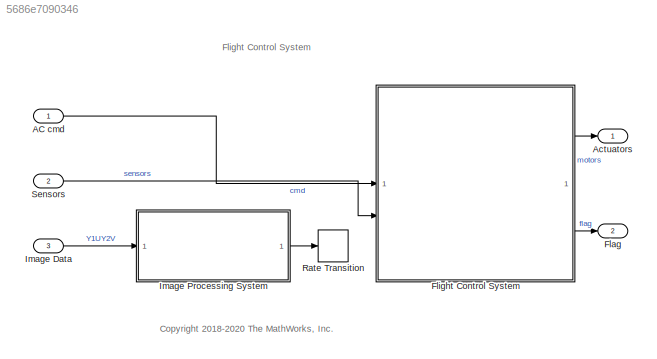
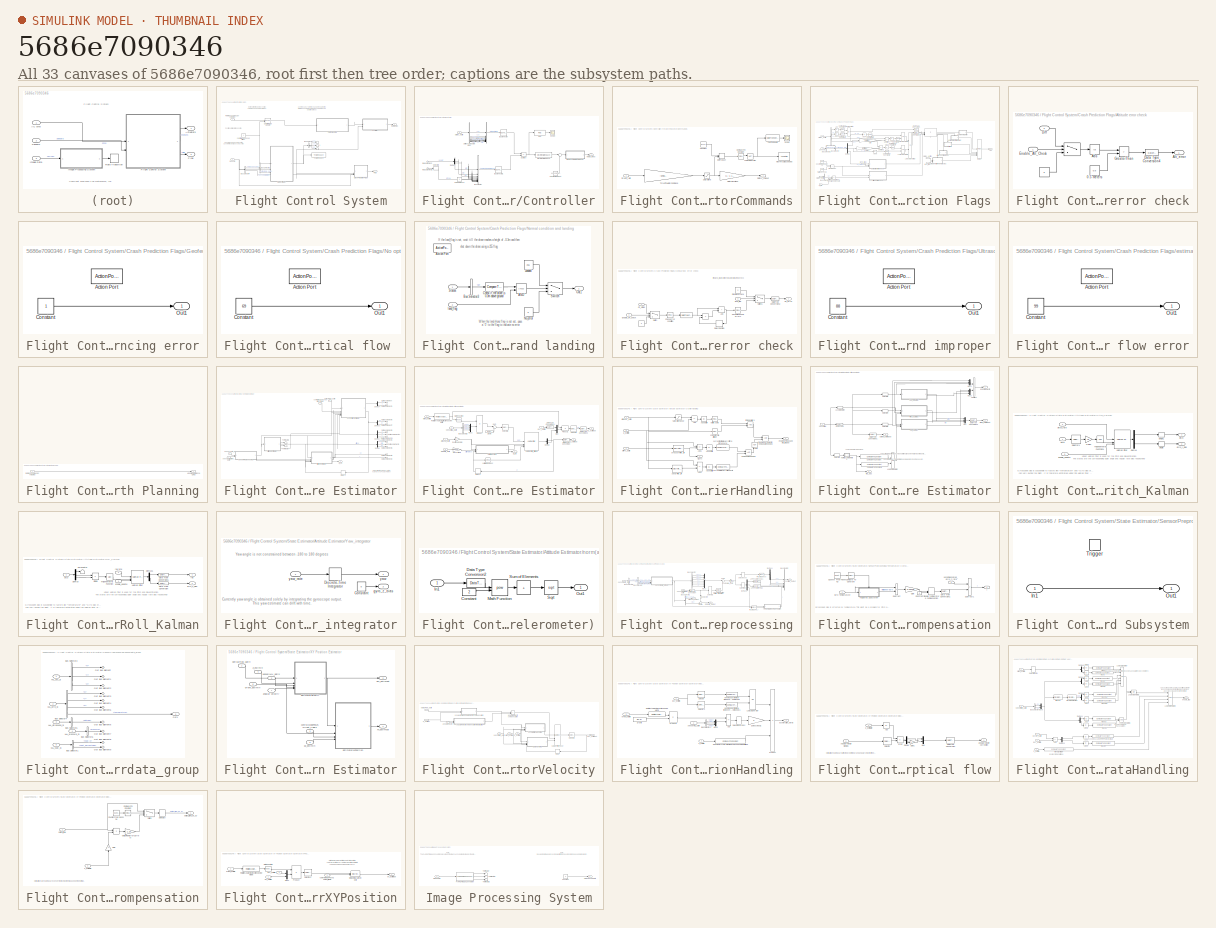
[diagram: thumbnail index - all 33 canvases of the model, root first then tree order]
MODEL slx_5686e7090346
KIND model
CONFIG AbsTol = auto
CONFIG EnableMultiTasking = on
CONFIG FixedStep = Ts
CONFIG MaxStep = auto
CONFIG MinStep = auto
CONFIG RelTol = 1e-3
CONFIG SampleTimeConstraint = Unconstrained
CONFIG SolverName = ode3
CONFIG StartTime = 0
CONFIG StopTime = TFinal
BLOCK [Inport] AC cmd
  BusOutputAsStruct = on
  OutDataTypeStr = Bus: CommandBus
BLOCK [Outport] Actuators
  OutDataTypeStr = single
  PortDimensions = 4
  VectorParamsAs1DForOutWhenUnconnected = off
BLOCK [Outport] Flag
  OutDataTypeStr = uint8
  Port = 2
  PortDimensions = 1
  VectorParamsAs1DForOutWhenUnconnected = off
BLOCK [SubSystem] Flight Control System
  InitFcn = codertarget.parrot.internal.fcsSubsystemCallback(gcb);
  RTWSystemCode = Reusable function
  SystemSampleTime = Ts
  TreatAsAtomicUnit = on
BLOCK [Terminator] Flight Control System/ 
BLOCK [Terminator] Flight Control System/    
BLOCK [Terminator] Flight Control System/ 1
BLOCK [BusSelector] Flight Control System/Bus Selector
  OutputSignals = X,Y,Z
BLOCK [BusSelector] Flight Control System/Bus Selector1
  OutputSignals = opticalFlow_data
BLOCK [BusSelector] Flight Control System/Bus Selector4
  OutputSignals = VisionSensors,SensorCalibration
BLOCK [BusAssignment] Flight Control System/Control Mode Update
  AssignedSignals = controlModePosVSOrient
BLOCK [SubSystem] Flight Control System/Controller
  SystemSampleTime = Ts
BLOCK [Sum] Flight Control System/Controller/ 
  Inputs = |++
BLOCK [BusCreator] Flight Control System/Controller/   
  DisplayOption = bar
  InheritFromInputs = on
  Inputs = 12
BLOCK [BusCreator] Flight Control System/Controller/Bus Creator
  DisplayOption = bar
  InheritFromInputs = on
  Inputs = 12
BLOCK [BusToVector] Flight Control System/Controller/Bus to Vector
BLOCK [BusToVector] Flight Control System/Controller/Bus to Vector1
BLOCK [Demux] Flight Control System/Controller/Demux
  Outputs = 3
BLOCK [DiscreteStateSpace] Flight Control System/Controller/Discrete State-Space
  A = eye(12)
  B = eye(12)*Ts
  C = Ccontrol(A0i, B0i, C0i'*diag([Qx_pi, Qy_pi, Qz_pi, Qpsi_pi, Qxi_pi, Qyi_pi, Qzi_pi, Qpsii_pi])*C0i, eye(4), Ts)
  D = Dcontrol(A0i, B0i, C0i'*diag([Qx_pi, Qy_pi, Qz_pi, Qpsi_pi, Qxi_pi, Qyi_pi, Qzi_pi, Qpsii_pi])*C0i, eye(4), Ts)
  SampleTime = -1
BLOCK [Inport] Flight Control System/Controller/In Bus Element
BLOCK [Inport] Flight Control System/Controller/In Bus Element2
BLOCK [Constant] Flight Control System/Controller/Linearization Input
  OutDataTypeStr = single
  Value = -0.1545*ones(4,1)
BLOCK [Reference] Flight Control System/Controller/RMS  REF=dspstat3/RMS
  SourceBlock = dspstat3/RMS
  SourceType = RMS
  UserDataPersistent = on
BLOCK [Scope] Flight Control System/Controller/Scope
  Floating = off
  NumInputPorts = 1
  ScopeSpecificationString = Simulink.scopes.TimeScopeBlockCfg('CurrentConfiguration', extmgr.ConfigurationSet(extmgr.Configuration('Core','General UI',true),extmgr.Configuration('Core','Source UI',true),extmgr.Configuration('Sources','WiredSimulink',true),extmgr.Configuration('Visuals','Time Domain',true),extmgr.Configuration('Tools','Plot Navigation',true),extmgr.Configuration('Tools','Measurements',true)),'Version','2024a'...<+1ch>
BLOCK [Selector] Flight Control System/Controller/Selector3
  IndexOptions = Index vector (dialog)
  Indices = 1
  InputPortWidth = 3
  OutputSizes = 1
BLOCK [Sum] Flight Control System/Controller/Subtract
  IconShape = rectangular
  Inputs = +-
BLOCK [BusSelector] Flight Control System/Controller/Switch yaw and roll order
  OutputSignals = X,Y,Z,yaw,pitch,roll,dx,dy,dz,p,q,r
BLOCK [Constant] Flight Control System/Controller/Zero Reference
  OutDataTypeStr = single
  Value = 0
BLOCK [Outport] Flight Control System/Controller/motors_refout
  VectorParamsAs1DForOutWhenUnconnected = off
BLOCK [Inport] Flight Control System/Controller/states_estim
  Port = 2
BLOCK [SubSystem] Flight Control System/Controller/thrustsToMotorCommands
BLOCK [DataTypeConversion] Flight Control System/Controller/thrustsToMotorCommands/Cast To Double
  OutDataTypeStr = double
  RndMeth = Floor
  SaturateOnIntegerOverflow = off
BLOCK [Reference] Flight Control System/Controller/thrustsToMotorCommands/Compare To Constant  REF=simulink/Logic and Bit
Operations/Compare
To Constant
  SourceBlock = simulink/Logic and Bit\nOperations/Compare\nTo Constant
  SourceType = Compare To Constant
BLOCK [Constant] Flight Control System/Controller/thrustsToMotorCommands/Constant
  OutDataTypeStr = single
  Value = [1 1 1 1]
BLOCK [DotProduct] Flight Control System/Controller/thrustsToMotorCommands/Dot Product
  OutDataTypeStr = Inherit: Inherit via internal rule
BLOCK [Logic] Flight Control System/Controller/thrustsToMotorCommands/Logical Operator
  AllPortsSameDT = off
  Operator = NOT
  OutDataTypeStr = boolean
BLOCK [Assertion] Flight Control System/Controller/thrustsToMotorCommands/Max Thrust Exceeded
BLOCK [Gain] Flight Control System/Controller/thrustsToMotorCommands/MotorDirections
  Gain = [1 -1 1 -1]
BLOCK [Saturate] Flight Control System/Controller/thrustsToMotorCommands/Saturation5
  LowerLimit = Vehicle.Motor.minLimit
  UpperLimit = Vehicle.Motor.maxLimit
BLOCK [Scope] Flight Control System/Controller/thrustsToMotorCommands/Scope
  Floating = off
  NumInputPorts = 1
  ScopeSpecificationString = Simulink.scopes.TimeScopeBlockCfg('CurrentConfiguration', extmgr.ConfigurationSet(extmgr.Configuration('Core','General UI',true),extmgr.Configuration('Core','Source UI',true),extmgr.Configuration('Sources','WiredSimulink',true,'DataLoggingVariableName','ScopeData1'),extmgr.Configuration('Visuals','Time Domain',true),extmgr.Configuration('Tools','Plot Navigation',true),extmgr.Configuration('Tools',...<+40ch>
BLOCK [Gain] Flight Control System/Controller/thrustsToMotorCommands/ThrustToMotorCommand
  Gain = -Vehicle.Motor.thrustToMotorCommand
BLOCK [Outport] Flight Control System/Controller/thrustsToMotorCommands/motors_cmdout
  VectorParamsAs1DForOutWhenUnconnected = off
BLOCK [Inport] Flight Control System/Controller/thrustsToMotorCommands/thrusts_refin
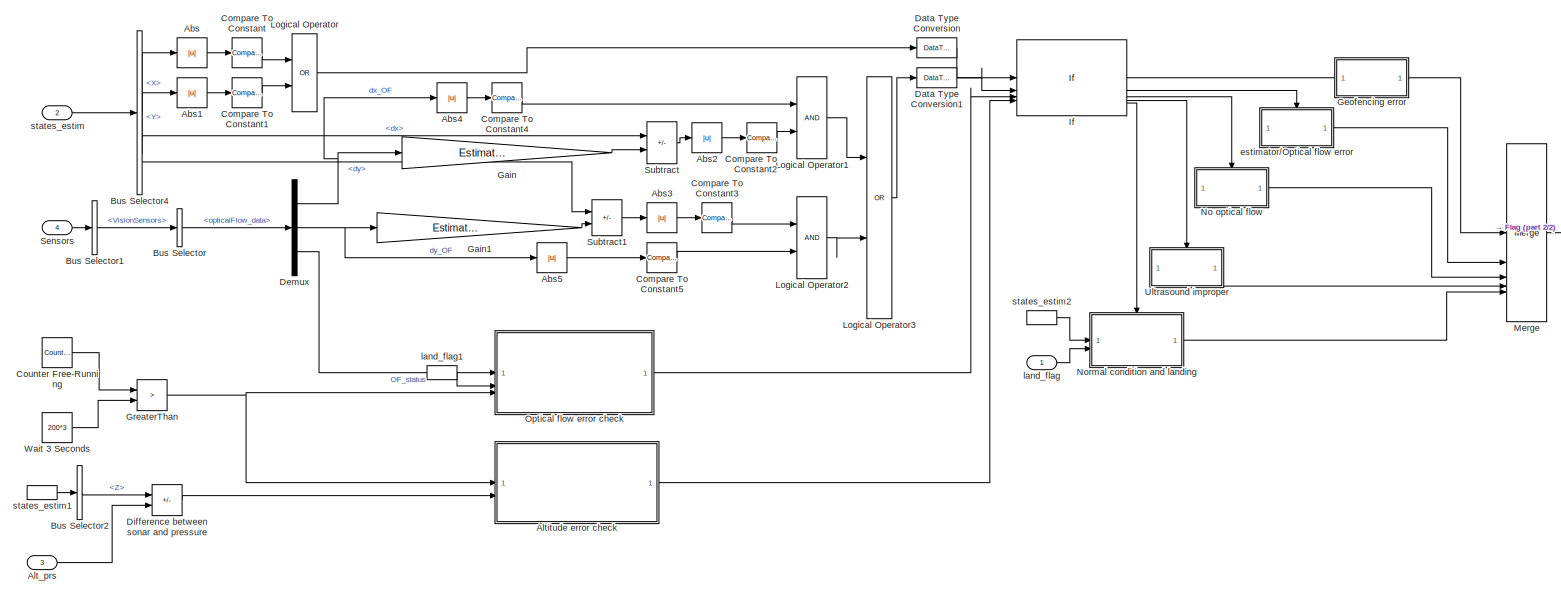
[diagram: Flight Control System/Crash Prediction Flags - part 1/2, most of the canvas]
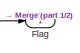
[diagram: Flight Control System/Crash Prediction Flags - part 2/2, middle right region]
BLOCK [SubSystem] Flight Control System/Crash Prediction Flags
BLOCK [Abs] Flight Control System/Crash Prediction Flags/Abs
  SaturateOnIntegerOverflow = off
BLOCK [Abs] Flight Control System/Crash Prediction Flags/Abs1
  SaturateOnIntegerOverflow = off
BLOCK [Abs] Flight Control System/Crash Prediction Flags/Abs2
  SaturateOnIntegerOverflow = off
BLOCK [Abs] Flight Control System/Crash Prediction Flags/Abs3
  SaturateOnIntegerOverflow = off
BLOCK [Abs] Flight Control System/Crash Prediction Flags/Abs4
  SaturateOnIntegerOverflow = off
BLOCK [Abs] Flight Control System/Crash Prediction Flags/Abs5
  SaturateOnIntegerOverflow = off
BLOCK [Inport] Flight Control System/Crash Prediction Flags/Alt_prs
  Port = 3
BLOCK [SubSystem] Flight Control System/Crash Prediction Flags/Altitude error check
BLOCK [Constant] Flight Control System/Crash Prediction Flags/Altitude error check/    
  OutDataTypeStr = single
  Value = 0
BLOCK [Switch] Flight Control System/Crash Prediction Flags/Altitude error check/         
  Criteria = u2 > Threshold
  InputSameDT = off
  SaturateOnIntegerOverflow = off
BLOCK [Constant] Flight Control System/Crash Prediction Flags/Altitude error check/0.5 meters
  Value = 0.5
BLOCK [Abs] Flight Control System/Crash Prediction Flags/Altitude error check/Abs  
  SaturateOnIntegerOverflow = off
BLOCK [Outport] Flight Control System/Crash Prediction Flags/Altitude error check/Alt_error
BLOCK [DataTypeConversion] Flight Control System/Crash Prediction Flags/Altitude error check/Data Type Conversion4
  OutDataTypeStr = uint8
  RndMeth = Nearest
  SaturateOnIntegerOverflow = off
BLOCK [Inport] Flight Control System/Crash Prediction Flags/Altitude error check/Diff
  Port = 2
BLOCK [Inport] Flight Control System/Crash Prediction Flags/Altitude error check/Enable_Alt_Check
BLOCK [RelationalOperator] Flight Control System/Crash Prediction Flags/Altitude error check/GreaterThan  
  InputSameDT = off
  NameLocation = top
  Operator = >
  OutDataTypeStr = boolean
  RndMeth = Simplest
BLOCK [BusSelector] Flight Control System/Crash Prediction Flags/Bus Selector
  OutputSignals = opticalFlow_data
BLOCK [BusSelector] Flight Control System/Crash Prediction Flags/Bus Selector1
  OutputSignals = VisionSensors
BLOCK [BusSelector] Flight Control System/Crash Prediction Flags/Bus Selector2
  OutputSignals = Z
BLOCK [BusSelector] Flight Control System/Crash Prediction Flags/Bus Selector4
  OutputSignals = X,Y,dx,dy
BLOCK [Reference] Flight Control System/Crash Prediction Flags/Compare To Constant  REF=simulink/Logic and Bit
Operations/Compare
To Constant
  SourceBlock = simulink/Logic and Bit\nOperations/Compare\nTo Constant
  SourceType = Compare To Constant
BLOCK [Reference] Flight Control System/Crash Prediction Flags/Compare To Constant1  REF=simulink/Logic and Bit
Operations/Compare
To Constant
  SourceBlock = simulink/Logic and Bit\nOperations/Compare\nTo Constant
  SourceType = Compare To Constant
BLOCK [Reference] Flight Control System/Crash Prediction Flags/Compare To Constant2  REF=simulink/Logic and Bit
Operations/Compare
To Constant
  SourceBlock = simulink/Logic and Bit\nOperations/Compare\nTo Constant
  SourceType = Compare To Constant
BLOCK [Reference] Flight Control System/Crash Prediction Flags/Compare To Constant3  REF=simulink/Logic and Bit
Operations/Compare
To Constant
  SourceBlock = simulink/Logic and Bit\nOperations/Compare\nTo Constant
  SourceType = Compare To Constant
BLOCK [Reference] Flight Control System/Crash Prediction Flags/Compare To Constant4  REF=simulink/Logic and Bit
Operations/Compare
To Constant
  SourceBlock = simulink/Logic and Bit\nOperations/Compare\nTo Constant
  SourceType = Compare To Constant
BLOCK [Reference] Flight Control System/Crash Prediction Flags/Compare To Constant5  REF=simulink/Logic and Bit
Operations/Compare
To Constant
  SourceBlock = simulink/Logic and Bit\nOperations/Compare\nTo Constant
  SourceType = Compare To Constant
BLOCK [Reference] Flight Control System/Crash Prediction Flags/Counter Free-Running  REF=simulink/Sources/Counter
Free-Running
  SourceBlock = simulink/Sources/Counter\nFree-Running
  SourceType = Counter Free-Running
BLOCK [DataTypeConversion] Flight Control System/Crash Prediction Flags/Data Type Conversion
  OutDataTypeStr = uint8
  RndMeth = Nearest
  SaturateOnIntegerOverflow = off
BLOCK [DataTypeConversion] Flight Control System/Crash Prediction Flags/Data Type Conversion1
  OutDataTypeStr = uint8
  RndMeth = Nearest
  SaturateOnIntegerOverflow = off
BLOCK [Demux] Flight Control System/Crash Prediction Flags/Demux
  Outputs = 3
BLOCK [Sum] Flight Control System/Crash Prediction Flags/Difference between sonar and pressure
  IconShape = rectangular
  Inputs = +-
BLOCK [Outport] Flight Control System/Crash Prediction Flags/Flag
  VectorParamsAs1DForOutWhenUnconnected = off
BLOCK [Gain] Flight Control System/Crash Prediction Flags/Gain
  Gain = Estimator.pos.visDeltaXYMax
BLOCK [Gain] Flight Control System/Crash Prediction Flags/Gain1
  Gain = Estimator.pos.visDeltaXYMax
BLOCK [SubSystem] Flight Control System/Crash Prediction Flags/Geofencing error
  TreatAsAtomicUnit = on
BLOCK [ActionPort] Flight Control System/Crash Prediction Flags/Geofencing error/Action Port
  ActionPortLabel = if(u1 > 0)
BLOCK [Constant] Flight Control System/Crash Prediction Flags/Geofencing error/Constant
  OutDataTypeStr = uint8
BLOCK [Outport] Flight Control System/Crash Prediction Flags/Geofencing error/Out1
  VectorParamsAs1DForOutWhenUnconnected = off
BLOCK [RelationalOperator] Flight Control System/Crash Prediction Flags/GreaterThan
  InputSameDT = off
  Operator = >
  OutDataTypeStr = boolean
  RndMeth = Simplest
BLOCK [If] Flight Control System/Crash Prediction Flags/If
  ElseIfExpressions = u2 > 0, u3> 0,u4>0
  NumInputs = 4
BLOCK [Logic] Flight Control System/Crash Prediction Flags/Logical Operator
  AllPortsSameDT = off
  Operator = OR
BLOCK [Logic] Flight Control System/Crash Prediction Flags/Logical Operator1
  AllPortsSameDT = off
  OutDataTypeStr = boolean
BLOCK [Logic] Flight Control System/Crash Prediction Flags/Logical Operator2
  AllPortsSameDT = off
  OutDataTypeStr = boolean
BLOCK [Logic] Flight Control System/Crash Prediction Flags/Logical Operator3
  AllPortsSameDT = off
  Operator = OR
BLOCK [Merge] Flight Control System/Crash Prediction Flags/Merge
  InitialOutput = 0
  Inputs = 5
BLOCK [SubSystem] Flight Control System/Crash Prediction Flags/No optical flow 
  TreatAsAtomicUnit = on
BLOCK [ActionPort] Flight Control System/Crash Prediction Flags/No optical flow /Action Port
  ActionPortLabel = elseif( u3> 0)
BLOCK [Constant] Flight Control System/Crash Prediction Flags/No optical flow /Constant
  OutDataTypeStr = uint8
  Value = 69
BLOCK [Outport] Flight Control System/Crash Prediction Flags/No optical flow /Out1
  VectorParamsAs1DForOutWhenUnconnected = off
BLOCK [SubSystem] Flight Control System/Crash Prediction Flags/Normal condition and landing
  TreatAsAtomicUnit = on
BLOCK [Logic] Flight Control System/Crash Prediction Flags/Normal condition and landing/AND
  AllPortsSameDT = off
  IconShape = distinctive
  OutDataTypeStr = boolean
BLOCK [ActionPort] Flight Control System/Crash Prediction Flags/Normal condition and landing/Action Port
  ActionPortLabel = else
BLOCK [BusSelector] Flight Control System/Crash Prediction Flags/Normal condition and landing/Bus Selector3
  OutputSignals = Z
BLOCK [Reference] Flight Control System/Crash Prediction Flags/Normal condition and landing/Check if the drone is 0.3m above ground  REF=simulink/Logic and Bit
Operations/Compare
To Constant
  SourceBlock = simulink/Logic and Bit\nOperations/Compare\nTo Constant
  SourceType = Compare To Constant
BLOCK [Constant] Flight Control System/Crash Prediction Flags/Normal condition and landing/Landed
  OutDataTypeStr = uint8
  Value = 255
BLOCK [Constant] Flight Control System/Crash Prediction Flags/Normal condition and landing/No_error
  OutDataTypeStr = uint8
  Value = 0
BLOCK [Outport] Flight Control System/Crash Prediction Flags/Normal condition and landing/Out1
BLOCK [Inport] Flight Control System/Crash Prediction Flags/Normal condition and landing/States
BLOCK [Switch] Flight Control System/Crash Prediction Flags/Normal condition and landing/Switch
  Criteria = u2 > Threshold
  InputSameDT = off
  SaturateOnIntegerOverflow = off
BLOCK [Inport] Flight Control System/Crash Prediction Flags/Normal condition and landing/land_flag
  Port = 2
BLOCK [SubSystem] Flight Control System/Crash Prediction Flags/Optical flow error check
BLOCK [Constant] Flight Control System/Crash Prediction Flags/Optical flow error check/ 
  Value = 0
BLOCK [Product] Flight Control System/Crash Prediction Flags/Optical flow error check/  
  Inputs = **
BLOCK [DataTypeConversion] Flight Control System/Crash Prediction Flags/Optical flow error check/   
  RndMeth = Floor
  SaturateOnIntegerOverflow = off
BLOCK [Constant] Flight Control System/Crash Prediction Flags/Optical flow error check/ Disable OF check
  Value = 0
BLOCK [Reference] Flight Control System/Crash Prediction Flags/Optical flow error check/50 continuous OF errors   REF=simulink/Logic and Bit
Operations/Compare
To Constant
  SourceBlock = simulink/Logic and Bit\nOperations/Compare\nTo Constant
  SourceType = Compare To Constant
BLOCK [Sum] Flight Control System/Crash Prediction Flags/Optical flow error check/Add
  IconShape = rectangular
BLOCK [Reference] Flight Control System/Crash Prediction Flags/Optical flow error check/Check error condition  REF=simulink/Logic and Bit
Operations/Compare
To Constant
  SourceBlock = simulink/Logic and Bit\nOperations/Compare\nTo Constant
  SourceType = Compare To Constant
BLOCK [DataTypeConversion] Flight Control System/Crash Prediction Flags/Optical flow error check/Data Type Conversion2
  OutDataTypeStr = uint8
  RndMeth = Nearest
  SaturateOnIntegerOverflow = off
BLOCK [Delay] Flight Control System/Crash Prediction Flags/Optical flow error check/Delay One Step
  DelayLength = 1
  InputPortMap = u0
BLOCK [Inport] Flight Control System/Crash Prediction Flags/Optical flow error check/Enable_OF_Check
  Port = 3
BLOCK [Outport] Flight Control System/Crash Prediction Flags/Optical flow error check/OF_Error
BLOCK [Inport] Flight Control System/Crash Prediction Flags/Optical flow error check/OF_status
BLOCK [Switch] Flight Control System/Crash Prediction Flags/Optical flow error check/Switch
  Criteria = u2 > Threshold
  InputSameDT = off
  SaturateOnIntegerOverflow = off
BLOCK [Switch] Flight Control System/Crash Prediction Flags/Optical flow error check/Switch1
  Criteria = u2 > Threshold
  InputSameDT = off
  SaturateOnIntegerOverflow = off
BLOCK [Inport] Flight Control System/Crash Prediction Flags/Optical flow error check/land_flag
  Port = 2
BLOCK [Inport] Flight Control System/Crash Prediction Flags/Sensors
  Port = 4
BLOCK [Sum] Flight Control System/Crash Prediction Flags/Subtract
  IconShape = rectangular
  Inputs = -+
BLOCK [Sum] Flight Control System/Crash Prediction Flags/Subtract1
  IconShape = rectangular
  Inputs = -+
BLOCK [SubSystem] Flight Control System/Crash Prediction Flags/Ultrasound improper
  TreatAsAtomicUnit = on
BLOCK [ActionPort] Flight Control System/Crash Prediction Flags/Ultrasound improper/Action Port
  ActionPortLabel = elseif(u4>0)
BLOCK [Constant] Flight Control System/Crash Prediction Flags/Ultrasound improper/Constant
  OutDataTypeStr = uint8
  Value = 88
BLOCK [Outport] Flight Control System/Crash Prediction Flags/Ultrasound improper/Out1
  VectorParamsAs1DForOutWhenUnconnected = off
BLOCK [Constant] Flight Control System/Crash Prediction Flags/Wait  3 Seconds
  Value = 200*3
BLOCK [SubSystem] Flight Control System/Crash Prediction Flags/estimator//Optical flow error
  TreatAsAtomicUnit = on
BLOCK [ActionPort] Flight Control System/Crash Prediction Flags/estimator//Optical flow error/Action Port
  ActionPortLabel = elseif(u2 > 0)
BLOCK [Constant] Flight Control System/Crash Prediction Flags/estimator//Optical flow error/Constant
  OutDataTypeStr = uint8
  Value = 99
BLOCK [Outport] Flight Control System/Crash Prediction Flags/estimator//Optical flow error/Out1
  VectorParamsAs1DForOutWhenUnconnected = off
BLOCK [Inport] Flight Control System/Crash Prediction Flags/land_flag
BLOCK [InportShadow] Flight Control System/Crash Prediction Flags/land_flag1
BLOCK [Inport] Flight Control System/Crash Prediction Flags/states_estim
  Port = 2
BLOCK [InportShadow] Flight Control System/Crash Prediction Flags/states_estim1
  Port = 2
BLOCK [InportShadow] Flight Control System/Crash Prediction Flags/states_estim2
  Port = 2
BLOCK [Outport] Flight Control System/Flag
  Port = 2
  VectorParamsAs1DForOutWhenUnconnected = off
BLOCK [SubSystem] Flight Control System/Path Planning
BLOCK [Inport] Flight Control System/Path Planning/ReferenceValueServerCmds
BLOCK [Outport] Flight Control System/Path Planning/UpdatedReferenceCmds
  VectorParamsAs1DForOutWhenUnconnected = off
BLOCK [Inport] Flight Control System/ReferenceValueServerCmds
  OutDataTypeStr = Bus: CommandBus
BLOCK [Inport] Flight Control System/Sensors
  BusOutputAsStruct = on
  OutDataTypeStr = Bus: SensorsBus
  Port = 2
BLOCK [SubSystem] Flight Control System/State Estimator
BLOCK [Outport] Flight Control System/State Estimator/Alt_prs
  Port = 2
  VectorParamsAs1DForOutWhenUnconnected = off
BLOCK [SubSystem] Flight Control System/State Estimator/Altitude Estimator
BLOCK [Outport] Flight Control System/State Estimator/Altitude Estimator/Alt_prs
  Port = 3
  VectorParamsAs1DForOutWhenUnconnected = off
BLOCK [BusSelector] Flight Control System/State Estimator/Altitude Estimator/Bus Selector2
  OutputSignals = ddx,ddy,ddz
BLOCK [DataTypeConversion] Flight Control System/State Estimator/Altitude Estimator/Data Type Conversion
  OutDataTypeStr = single
  RndMeth = Floor
BLOCK [DataTypeConversion] Flight Control System/State Estimator/Altitude Estimator/Data Type Conversion1
  OutDataTypeStr = double
  RndMeth = Floor
BLOCK [DataTypeConversion] Flight Control System/State Estimator/Altitude Estimator/Data Type Conversion2
  OutDataTypeStr = single
  RndMeth = Floor
BLOCK [Delay] Flight Control System/State Estimator/Altitude Estimator/Delay2
  DelayLength = 1
  InitialCondition = 0
  InputPortMap = u0
  NameLocation = top
BLOCK [Demux] Flight Control System/State Estimator/Altitude Estimator/Demux
  Outputs = 2
BLOCK [Reference] Flight Control System/State Estimator/Altitude Estimator/KalmanFilter_altitude  REF=ctrlSharedLib/Kalman Filter
  SourceBlock = ctrlSharedLib/Kalman Filter
  SourceType = ctrlKalmanFilter
BLOCK [Math] Flight Control System/State Estimator/Altitude Estimator/Math Function
  Operator = transpose
  SignedPower = on
BLOCK [Mux] Flight Control System/State Estimator/Altitude Estimator/Mux
  DisplayOption = bar
  Inputs = 2
BLOCK [Mux] Flight Control System/State Estimator/Altitude Estimator/Mux2
  DisplayOption = bar
  Inputs = 3
BLOCK [SubSystem] Flight Control System/State Estimator/Altitude Estimator/OutlierHandling
BLOCK [Abs] Flight Control System/State Estimator/Altitude Estimator/OutlierHandling/Absestdiff
  SaturateOnIntegerOverflow = off
BLOCK [Abs] Flight Control System/State Estimator/Altitude Estimator/OutlierHandling/Absestdiff1
  SaturateOnIntegerOverflow = off
BLOCK [Abs] Flight Control System/State Estimator/Altitude Estimator/OutlierHandling/Absestdiff2
  SaturateOnIntegerOverflow = off
BLOCK [Sum] Flight Control System/State Estimator/Altitude Estimator/OutlierHandling/Add
  IconShape = rectangular
  Inputs = -+
BLOCK [Sum] Flight Control System/State Estimator/Altitude Estimator/OutlierHandling/Add1
  IconShape = rectangular
  Inputs = -+
BLOCK [Sum] Flight Control System/State Estimator/Altitude Estimator/OutlierHandling/Add2
  IconShape = rectangular
  Inputs = -+
BLOCK [Outport] Flight Control System/State Estimator/Altitude Estimator/OutlierHandling/Alt_prs
  Port = 2
  VectorParamsAs1DForOutWhenUnconnected = off
BLOCK [Logic] Flight Control System/State Estimator/Altitude Estimator/OutlierHandling/NOT
  AllPortsSameDT = off
  IconShape = distinctive
  Operator = NOT
  OutDataTypeStr = boolean
BLOCK [Saturate] Flight Control System/State Estimator/Altitude Estimator/OutlierHandling/SaturationSonar
  LowerLimit = -inf
  UpperLimit = -Sensors.altSensorMin
BLOCK [Inport] Flight Control System/State Estimator/Altitude Estimator/OutlierHandling/Z_estimin
  Port = 3
BLOCK [Inport] Flight Control System/State Estimator/Altitude Estimator/OutlierHandling/altPrs_datin
  Port = 2
BLOCK [Inport] Flight Control System/State Estimator/Altitude Estimator/OutlierHandling/altSonar_datin
  NameLocation = top
BLOCK [Reference] Flight Control System/State Estimator/Altitude Estimator/OutlierHandling/check for min altitude  REF=simulink/Logic and Bit
Operations/Compare
To Constant
  SourceBlock = simulink/Logic and Bit\nOperations/Compare\nTo Constant
  SourceType = Compare To Constant
BLOCK [Reference] Flight Control System/State Estimator/Altitude Estimator/OutlierHandling/currentEstimateVeryOffFromPressure  REF=simulink/Logic and Bit
Operations/Compare
To Constant
  SourceBlock = simulink/Logic and Bit\nOperations/Compare\nTo Constant
  SourceType = Compare To Constant
BLOCK [Reference] Flight Control System/State Estimator/Altitude Estimator/OutlierHandling/currentStateVeryOffsonarflt  REF=simulink/Logic and Bit
Operations/Compare
To Constant
  SourceBlock = simulink/Logic and Bit\nOperations/Compare\nTo Constant
  SourceType = Compare To Constant
BLOCK [Outport] Flight Control System/State Estimator/Altitude Estimator/OutlierHandling/enableKFmeasupdate_flagout
  VectorParamsAs1DForOutWhenUnconnected = off
BLOCK [Logic] Flight Control System/State Estimator/Altitude Estimator/OutlierHandling/findingoutliers
  AllPortsSameDT = off
  OutDataTypeStr = boolean
BLOCK [Logic] Flight Control System/State Estimator/Altitude Estimator/OutlierHandling/newupdateneeded
  AllPortsSameDT = off
  OutDataTypeStr = boolean
BLOCK [Logic] Flight Control System/State Estimator/Altitude Estimator/OutlierHandling/nicemeasurementor newupdateneeded
  AllPortsSameDT = off
  OutDataTypeStr = boolean
BLOCK [Reference] Flight Control System/State Estimator/Altitude Estimator/OutlierHandling/outlierJump  REF=simulink/Logic and Bit
Operations/Compare
To Constant
  SourceBlock = simulink/Logic and Bit\nOperations/Compare\nTo Constant
  SourceType = Compare To Constant
BLOCK [DiscreteFilter] Flight Control System/State Estimator/Altitude Estimator/OutlierHandling/pressureFilter_IIR
  Denominator = Estimator.alt.filterPrsDen
  InputPortMap = u0
  Numerator = Estimator.alt.filterPrsNum
BLOCK [DiscreteFilter] Flight Control System/State Estimator/Altitude Estimator/OutlierHandling/sonarFilter_IIR
  Denominator = Estimator.alt.filterSonarDen
  InputPortMap = u0
  Numerator = Estimator.alt.filterSonarNum
BLOCK [Product] Flight Control System/State Estimator/Altitude Estimator/Product
  Multiplication = Matrix(*)
BLOCK [Product] Flight Control System/State Estimator/Altitude Estimator/Product1
  Multiplication = Matrix(*)
BLOCK [Reference] Flight Control System/State Estimator/Altitude Estimator/Rotation Angles to Direction Cosine Matrix  REF=sharedtransform/Rotation Angles to
Direction Cosine Matrix
  AttributesFormatString = Rotation Order: %<rotationOrder>
  SourceBlock = sharedtransform/Rotation Angles to\nDirection Cosine Matrix
  SourceType = Ang2DCM
BLOCK [Selector] Flight Control System/State Estimator/Altitude Estimator/Selector4
  IndexOptions = Index vector (dialog)
  Indices = [3]
  InputPortWidth = 3
  OutputSizes = 1
BLOCK [Selector] Flight Control System/State Estimator/Altitude Estimator/Selector5
  IndexOptions = Index vector (dialog)
  Indices = [3]
  InputPortWidth = 3
  OutputSizes = 1
BLOCK [Sum] Flight Control System/State Estimator/Altitude Estimator/Sum
  Inputs = |++
BLOCK [Outport] Flight Control System/State Estimator/Altitude Estimator/Z_estimout
  Port = 2
  VectorParamsAs1DForOutWhenUnconnected = off
BLOCK [Inport] Flight Control System/State Estimator/Altitude Estimator/altSonar_datin
  Port = 2
BLOCK [Inport] Flight Control System/State Estimator/Altitude Estimator/dxy_estimin
  Port = 4
BLOCK [Outport] Flight Control System/State Estimator/Altitude Estimator/dz_estimout
  VectorParamsAs1DForOutWhenUnconnected = off
BLOCK [Constant] Flight Control System/State Estimator/Altitude Estimator/gravity
  Value = [0 0 g]
BLOCK [Gain] Flight Control System/State Estimator/Altitude Estimator/invertzaxisGain
  Gain = -1
  OutDataTypeStr = double
  ParamDataTypeStr = single
BLOCK [Inport] Flight Control System/State Estimator/Altitude Estimator/orient_estimin
  Port = 5
BLOCK [Reference] Flight Control System/State Estimator/Altitude Estimator/outlierBelowFloor  REF=simulink/Logic and Bit
Operations/Compare
To Constant
  SourceBlock = simulink/Logic and Bit\nOperations/Compare\nTo Constant
  SourceType = Compare To Constant
BLOCK [Inport] Flight Control System/State Estimator/Altitude Estimator/prsDelta_datin
  Port = 3
BLOCK [Gain] Flight Control System/State Estimator/Altitude Estimator/prsToAltGain
  Gain = 1/Sensors.altToPrsGain
BLOCK [Inport] Flight Control System/State Estimator/Altitude Estimator/sensorIMU_datin
BLOCK [SubSystem] Flight Control System/State Estimator/Attitude Estimator
BLOCK [Selector] Flight Control System/State Estimator/Attitude Estimator/Accelerometer
  IndexOptions = Index vector (dialog)
  Indices = [1 2 3]
  InputPortWidth = 6
  OutputSizes = 1
BLOCK [Reference] Flight Control System/State Estimator/Attitude Estimator/Compare To Constant  REF=simulink/Logic and Bit
Operations/Compare
To Constant
  SourceBlock = simulink/Logic and Bit\nOperations/Compare\nTo Constant
  SourceType = Compare To Constant
BLOCK [Reference] Flight Control System/State Estimator/Attitude Estimator/Compare To Constant1  REF=simulink/Logic and Bit
Operations/Compare
To Constant
  SourceBlock = simulink/Logic and Bit\nOperations/Compare\nTo Constant
  SourceType = Compare To Constant
BLOCK [DataTypeConversion] Flight Control System/State Estimator/Attitude Estimator/Data Type Conversion1
  OutDataTypeStr = single
  RndMeth = Floor
  SaturateOnIntegerOverflow = off
BLOCK [DataTypeConversion] Flight Control System/State Estimator/Attitude Estimator/Data Type Conversion3
  OutDataTypeStr = single
  RndMeth = Floor
  SaturateOnIntegerOverflow = off
BLOCK [Selector] Flight Control System/State Estimator/Attitude Estimator/Gyroscope
  IndexOptions = Index vector (dialog)
  Indices = [4 5 6]
  InputPortWidth = 6
  OutputSizes = 1
BLOCK [Logic] Flight Control System/State Estimator/Attitude Estimator/Logical Operator
  AllPortsSameDT = off
  OutDataTypeStr = fixdt(1,16)
BLOCK [Mux] Flight Control System/State Estimator/Attitude Estimator/Mux
  DisplayOption = bar
  Inputs = 3
BLOCK [Mux] Flight Control System/State Estimator/Attitude Estimator/Mux1
  DisplayOption = bar
  Inputs = 3
BLOCK [Mux] Flight Control System/State Estimator/Attitude Estimator/Mux2
  DisplayOption = bar
  Inputs = 3
BLOCK [SubSystem] Flight Control System/State Estimator/Attitude Estimator/Pitch_Kalman
BLOCK [Demux] Flight Control System/State Estimator/Attitude Estimator/Pitch_Kalman/Demux
  Outputs = 2
BLOCK [Gain] Flight Control System/State Estimator/Attitude Estimator/Pitch_Kalman/Gain2
  Gain = 1/g
BLOCK [Reference] Flight Control System/State Estimator/Attitude Estimator/Pitch_Kalman/Kalman Filter  REF=ctrlSharedLib/Kalman Filter
  SourceBlock = ctrlSharedLib/Kalman Filter
  SourceType = ctrlKalmanFilter
BLOCK [Selector] Flight Control System/State Estimator/Attitude Estimator/Pitch_Kalman/Selector1
  IndexOptions = Index vector (dialog)
  Indices = [1]
  InputPortWidth = 3
  OutputSizes = 1
BLOCK [Trigonometry] Flight Control System/State Estimator/Attitude Estimator/Pitch_Kalman/Trigonometric Function1
  Operator = asin
BLOCK [Inport] Flight Control System/State Estimator/Attitude Estimator/Pitch_Kalman/axyz
BLOCK [Inport] Flight Control System/State Estimator/Attitude Estimator/Pitch_Kalman/enable_update
  Port = 3
BLOCK [Outport] Flight Control System/State Estimator/Attitude Estimator/Pitch_Kalman/gyro_y_bias
  Port = 2
BLOCK [Outport] Flight Control System/State Estimator/Attitude Estimator/Pitch_Kalman/pitch
BLOCK [Inport] Flight Control System/State Estimator/Attitude Estimator/Pitch_Kalman/pitch_rate
  Port = 2
BLOCK [DataTypeConversion] Flight Control System/State Estimator/Attitude Estimator/Pitch_Kalman/single
  OutDataTypeStr = single
  RndMeth = Floor
  SaturateOnIntegerOverflow = off
BLOCK [DataTypeConversion] Flight Control System/State Estimator/Attitude Estimator/Pitch_Kalman/single1
  OutDataTypeStr = single
  RndMeth = Floor
  SaturateOnIntegerOverflow = off
BLOCK [SubSystem] Flight Control System/State Estimator/Attitude Estimator/Roll_Kalman
BLOCK [DataTypeConversion] Flight Control System/State Estimator/Attitude Estimator/Roll_Kalman/Data Type Conversion
  RndMeth = Floor
  SaturateOnIntegerOverflow = off
BLOCK [DataTypeConversion] Flight Control System/State Estimator/Attitude Estimator/Roll_Kalman/Data Type Conversion1
  RndMeth = Floor
  SaturateOnIntegerOverflow = off
BLOCK [Demux] Flight Control System/State Estimator/Attitude Estimator/Roll_Kalman/Demux
  Outputs = 3
BLOCK [Demux] Flight Control System/State Estimator/Attitude Estimator/Roll_Kalman/Demux1
  Outputs = 2
BLOCK [Product] Flight Control System/State Estimator/Attitude Estimator/Roll_Kalman/Divide
  Inputs = */
BLOCK [Reference] Flight Control System/State Estimator/Attitude Estimator/Roll_Kalman/Kalman Filter  REF=ctrlSharedLib/Kalman Filter
  SourceBlock = ctrlSharedLib/Kalman Filter
  SourceType = ctrlKalmanFilter
BLOCK [Terminator] Flight Control System/State Estimator/Attitude Estimator/Roll_Kalman/Terminator
BLOCK [Trigonometry] Flight Control System/State Estimator/Attitude Estimator/Roll_Kalman/Trigonometric Function
  Operator = atan
BLOCK [Inport] Flight Control System/State Estimator/Attitude Estimator/Roll_Kalman/axyz
BLOCK [Inport] Flight Control System/State Estimator/Attitude Estimator/Roll_Kalman/enable_update
  Port = 3
BLOCK [Outport] Flight Control System/State Estimator/Attitude Estimator/Roll_Kalman/gyro_x_bias
  Port = 2
BLOCK [Outport] Flight Control System/State Estimator/Attitude Estimator/Roll_Kalman/roll
BLOCK [Inport] Flight Control System/State Estimator/Attitude Estimator/Roll_Kalman/roll_rate
  Port = 2
BLOCK [Selector] Flight Control System/State Estimator/Attitude Estimator/Selector2
  IndexOptions = Index vector (dialog)
  Indices = [1 2 3]
  InputPortWidth = 6
  OutputSizes = 1
BLOCK [Selector] Flight Control System/State Estimator/Attitude Estimator/Selector4
  IndexOptions = Index vector (dialog)
  Indices = [2]
  InputPortWidth = 3
  OutputSizes = 1
BLOCK [Selector] Flight Control System/State Estimator/Attitude Estimator/Selector5
  IndexOptions = Index vector (dialog)
  Indices = [3]
  InputPortWidth = 3
  OutputSizes = 1
BLOCK [Selector] Flight Control System/State Estimator/Attitude Estimator/Selector6
  IndexOptions = Index vector (dialog)
  Indices = [1]
  InputPortWidth = 3
  OutputSizes = 1
BLOCK [Sum] Flight Control System/State Estimator/Attitude Estimator/Subtract
  IconShape = rectangular
  Inputs = +-
BLOCK [SubSystem] Flight Control System/State Estimator/Attitude Estimator/Yaw_integrator
BLOCK [Constant] Flight Control System/State Estimator/Attitude Estimator/Yaw_integrator/Constant
  OutDataTypeStr = single
  Value = 0
BLOCK [DiscreteIntegrator] Flight Control System/State Estimator/Attitude Estimator/Yaw_integrator/Discrete-Time Integrator
  ICPrevOutput = DiscIntNeverNeededParam
  ICPrevScaledInput = DiscIntNeverNeededParam
  InitialConditionSetting = Auto
  SampleTime = -1
BLOCK [Outport] Flight Control System/State Estimator/Attitude Estimator/Yaw_integrator/gyro_z_bias
  Port = 2
BLOCK [Outport] Flight Control System/State Estimator/Attitude Estimator/Yaw_integrator/yaw
BLOCK [Inport] Flight Control System/State Estimator/Attitude Estimator/Yaw_integrator/yaw_rate
BLOCK [Outport] Flight Control System/State Estimator/Attitude Estimator/angular velocity
  Port = 4
  VectorParamsAs1DForOutWhenUnconnected = off
BLOCK [Outport] Flight Control System/State Estimator/Attitude Estimator/dorient_estimaout
  Port = 3
  VectorParamsAs1DForOutWhenUnconnected = off
BLOCK [Outport] Flight Control System/State Estimator/Attitude Estimator/imu_abs
  OutDataTypeStr = single
  Port = 2
  VectorParamsAs1DForOutWhenUnconnected = off
BLOCK [SubSystem] Flight Control System/State Estimator/Attitude Estimator/norm(accelerometer)
BLOCK [Constant] Flight Control System/State Estimator/Attitude Estimator/norm(accelerometer)/Constant
  OutDataTypeStr = single
  Value = 2
BLOCK [DataTypeConversion] Flight Control System/State Estimator/Attitude Estimator/norm(accelerometer)/Data Type Conversion2
  OutDataTypeStr = single
  RndMeth = Floor
  SaturateOnIntegerOverflow = off
BLOCK [Inport] Flight Control System/State Estimator/Attitude Estimator/norm(accelerometer)/In1
BLOCK [Math] Flight Control System/State Estimator/Attitude Estimator/norm(accelerometer)/Math Function
  Operator = pow
  SignedPower = on
BLOCK [Outport] Flight Control System/State Estimator/Attitude Estimator/norm(accelerometer)/Out1
BLOCK [Sqrt] Flight Control System/State Estimator/Attitude Estimator/norm(accelerometer)/Sqrt
BLOCK [Sum] Flight Control System/State Estimator/Attitude Estimator/norm(accelerometer)/Sum of Elements
  IconShape = rectangular
  Inputs = +
BLOCK [Outport] Flight Control System/State Estimator/Attitude Estimator/orient_estimaout
  VectorParamsAs1DForOutWhenUnconnected = off
BLOCK [Inport] Flight Control System/State Estimator/Attitude Estimator/sensorIMU
  OutDataTypeStr = single
BLOCK [Delay] Flight Control System/State Estimator/Delay1
  DelayLength = 1
  InitialCondition = 0
  InputPortMap = u0
BLOCK [Demux] Flight Control System/State Estimator/Demux
  Outputs = 3
BLOCK [Demux] Flight Control System/State Estimator/Demux1
  Outputs = 3
BLOCK [Demux] Flight Control System/State Estimator/Demux3
  Outputs = 2
BLOCK [Demux] Flight Control System/State Estimator/Demux4
  Outputs = 2
BLOCK [Outport] Flight Control System/State Estimator/Out Bus Element
  VectorParamsAs1DForOutWhenUnconnected = off
BLOCK [Outport] Flight Control System/State Estimator/Out Bus Element1
  VectorParamsAs1DForOutWhenUnconnected = off
BLOCK [Outport] Flight Control System/State Estimator/Out Bus Element10
  VectorParamsAs1DForOutWhenUnconnected = off
BLOCK [Outport] Flight Control System/State Estimator/Out Bus Element11
  VectorParamsAs1DForOutWhenUnconnected = off
BLOCK [Outport] Flight Control System/State Estimator/Out Bus Element2
  VectorParamsAs1DForOutWhenUnconnected = off
BLOCK [Outport] Flight Control System/State Estimator/Out Bus Element3
  VectorParamsAs1DForOutWhenUnconnected = off
BLOCK [Outport] Flight Control System/State Estimator/Out Bus Element4
  VectorParamsAs1DForOutWhenUnconnected = off
BLOCK [Outport] Flight Control System/State Estimator/Out Bus Element5
  VectorParamsAs1DForOutWhenUnconnected = off
BLOCK [Outport] Flight Control System/State Estimator/Out Bus Element6
  VectorParamsAs1DForOutWhenUnconnected = off
BLOCK [Outport] Flight Control System/State Estimator/Out Bus Element7
  VectorParamsAs1DForOutWhenUnconnected = off
BLOCK [Outport] Flight Control System/State Estimator/Out Bus Element8
  VectorParamsAs1DForOutWhenUnconnected = off
BLOCK [Outport] Flight Control System/State Estimator/Out Bus Element9
  VectorParamsAs1DForOutWhenUnconnected = off
BLOCK [SubSystem] Flight Control System/State Estimator/SensorPreprocessing
BLOCK [Bias] Flight Control System/State Estimator/SensorPreprocessing/Assuming that the preflight calibration was done at level orientation
  Bias = [0 0 +g 0 0 0]
  SaturateOnIntegerOverflow = off
BLOCK [BusCreator] Flight Control System/State Estimator/SensorPreprocessing/Bus Creator3
  DisplayOption = bar
  InheritFromInputs = on
  Inputs = 6
BLOCK [BusSelector] Flight Control System/State Estimator/SensorPreprocessing/Bus Selector
  OutputSignals = ddx,ddy,ddz,p,q,r
BLOCK [BusSelector] Flight Control System/State Estimator/SensorPreprocessing/Bus Selector1
  OutputSignals = altitude_sonar,prs
BLOCK [BusSelector] Flight Control System/State Estimator/SensorPreprocessing/Bus Selector2
  OutputSignals = HAL_acc_SI,HAL_gyro_SI,HAL_ultrasound_SI,HAL_pressure_SI,HAL_vbat_SI
BLOCK [BusSelector] Flight Control System/State Estimator/SensorPreprocessing/Bus Selector3
  OutputSignals = HALSensors
BLOCK [DataTypeConversion] Flight Control System/State Estimator/SensorPreprocessing/Data Type Conversion
  RndMeth = Floor
  SaturateOnIntegerOverflow = off
BLOCK [Demux] Flight Control System/State Estimator/SensorPreprocessing/Demux1
  Outputs = 3
BLOCK [Demux] Flight Control System/State Estimator/SensorPreprocessing/Demux2
  Outputs = 3
BLOCK [DiscreteFir] Flight Control System/State Estimator/SensorPreprocessing/FIR_IMUaccel
  Coefficients = Estimator.IMU.filterAccel.Coefficients
  InputPortMap = u0
  OutputPortMap = o0
BLOCK [DiscreteFilter] Flight Control System/State Estimator/SensorPreprocessing/IIR_IMUgyro_r
  Denominator = Estimator.IMU.filterGyroDen
  InputPortMap = u0
  Numerator = Estimator.IMU.filterGyroNum
BLOCK [DiscreteTransferFcn] Flight Control System/State Estimator/SensorPreprocessing/LPF Fcutoff = 40Hz
  Denominator = [1+1/pi/Ts/40, 1-1/pi/Ts/40]
  InputPortMap = u0
  Numerator = [1, 1]
BLOCK [DiscreteTransferFcn] Flight Control System/State Estimator/SensorPreprocessing/LPF Fcutoff = 40Hz1
  Denominator = [1+1/pi/Ts/40, 1-1/pi/Ts/40]
  InputPortMap = u0
  Numerator = [1, 1]
BLOCK [Mux] Flight Control System/State Estimator/SensorPreprocessing/Mux1
  DisplayOption = bar
  Inputs = 6
BLOCK [Selector] Flight Control System/State Estimator/SensorPreprocessing/Select Accel
  IndexOptions = Index vector (dialog)
  Indices = [1 2 3]
  InputPortWidth = 6
  OutputSizes = 1
BLOCK [Selector] Flight Control System/State Estimator/SensorPreprocessing/Select pqr
  IndexOptions = Index vector (dialog)
  Indices = [4 5 6]
  InputPortWidth = 6
  OutputSizes = 1
BLOCK [Selector] Flight Control System/State Estimator/SensorPreprocessing/Selector2
  IndexOptions = Index vector (dialog)
  Indices = [1:6]
  InputPortWidth = 8
  OutputSizes = 1
BLOCK [Selector] Flight Control System/State Estimator/SensorPreprocessing/Selector4
  IndexOptions = Index vector (dialog)
  Indices = [7]
  InputPortWidth = 8
  NameLocation = left
  OutputSizes = 1
BLOCK [Sum] Flight Control System/State Estimator/SensorPreprocessing/Sum1
  Inputs = |+-
BLOCK [Sum] Flight Control System/State Estimator/SensorPreprocessing/Sum2
  Inputs = -+|
BLOCK [SubSystem] Flight Control System/State Estimator/SensorPreprocessing/Temperature Compensation
BLOCK [Reference] Flight Control System/State Estimator/SensorPreprocessing/Temperature Compensation/Compare To Constant  REF=simulink/Logic and Bit
Operations/Compare
To Constant
  SourceBlock = simulink/Logic and Bit\nOperations/Compare\nTo Constant
  SourceType = Compare To Constant
BLOCK [Constant] Flight Control System/State Estimator/SensorPreprocessing/Temperature Compensation/Constant
  Value = 0
BLOCK [Reference] Flight Control System/State Estimator/SensorPreprocessing/Temperature Compensation/Counter Free-Running  REF=simulink/Sources/Counter
Free-Running
  SourceBlock = simulink/Sources/Counter\nFree-Running
  SourceType = Counter Free-Running
BLOCK [DataTypeConversion] Flight Control System/State Estimator/SensorPreprocessing/Temperature Compensation/Data Type Conversion1
  RndMeth = Floor
  SaturateOnIntegerOverflow = off
BLOCK [ManualSwitch] Flight Control System/State Estimator/SensorPreprocessing/Temperature Compensation/Disable temperature compensation
BLOCK [Gain] Flight Control System/State Estimator/SensorPreprocessing/Temperature Compensation/Gain
  Gain = 0.00228
BLOCK [Inport] Flight Control System/State Estimator/SensorPreprocessing/Temperature Compensation/Gyro Temperature
BLOCK [Sum] Flight Control System/State Estimator/SensorPreprocessing/Temperature Compensation/Subtract
  IconShape = rectangular
  Inputs = +-
BLOCK [Sum] Flight Control System/State Estimator/SensorPreprocessing/Temperature Compensation/Subtract1
  IconShape = rectangular
  Inputs = +-
BLOCK [SubSystem] Flight Control System/State Estimator/SensorPreprocessing/Temperature Compensation/Triggered Subsystem
  TreatAsAtomicUnit = on
BLOCK [Inport] Flight Control System/State Estimator/SensorPreprocessing/Temperature Compensation/Triggered Subsystem/In1
BLOCK [Outport] Flight Control System/State Estimator/SensorPreprocessing/Temperature Compensation/Triggered Subsystem/Out1
BLOCK [TriggerPort] Flight Control System/State Estimator/SensorPreprocessing/Temperature Compensation/Triggered Subsystem/Trigger
  StatesWhenEnabling = held
  TriggerType = either
  VariantControl = Variant
BLOCK [Outport] Flight Control System/State Estimator/SensorPreprocessing/Temperature Compensation/r
BLOCK [Inport] Flight Control System/State Estimator/SensorPreprocessing/Temperature Compensation/uncompensated_gyro_z_rate
  Port = 2
BLOCK [Outport] Flight Control System/State Estimator/SensorPreprocessing/altSonar_datout
  NameLocation = top
  Port = 2
  VectorParamsAs1DForOutWhenUnconnected = off
BLOCK [Gain] Flight Control System/State Estimator/SensorPreprocessing/inverseIMU_gain
  Gain = Estimator.inverseIMUGain
  OutDataTypeStr = single
  ParamDataTypeStr = single
BLOCK [Outport] Flight Control System/State Estimator/SensorPreprocessing/prsDelta_datout
  Port = 3
  VectorParamsAs1DForOutWhenUnconnected = off
BLOCK [Inport] Flight Control System/State Estimator/SensorPreprocessing/sensorCalibration_datin
  Port = 2
BLOCK [Outport] Flight Control System/State Estimator/SensorPreprocessing/sensorIMU_datout
  VectorParamsAs1DForOutWhenUnconnected = off
BLOCK [Inport] Flight Control System/State Estimator/SensorPreprocessing/sensordata_datin
BLOCK [SubSystem] Flight Control System/State Estimator/SensorPreprocessing/sensordata_group
BLOCK [BusSelector] Flight Control System/State Estimator/SensorPreprocessing/sensordata_group/Bus Selector1
  OutputSignals = vbat_V,vbat_percentage
BLOCK [BusSelector] Flight Control System/State Estimator/SensorPreprocessing/sensordata_group/Bus Selector3
  OutputSignals = x,y,z
BLOCK [BusSelector] Flight Control System/State Estimator/SensorPreprocessing/sensordata_group/Bus Selector4
  OutputSignals = x,y,z,temperature
BLOCK [BusSelector] Flight Control System/State Estimator/SensorPreprocessing/sensordata_group/Bus Selector5
  OutputSignals = altitude
BLOCK [BusSelector] Flight Control System/State Estimator/SensorPreprocessing/sensordata_group/Bus Selector6
  OutputSignals = pressure
BLOCK [Inport] Flight Control System/State Estimator/SensorPreprocessing/sensordata_group/HAL_acc_SI
  OutDataTypeStr = Bus: HAL_acc_SI_t
BLOCK [Inport] Flight Control System/State Estimator/SensorPreprocessing/sensordata_group/HAL_gyro_SI
  OutDataTypeStr = Bus: HAL_gyro_SI_t
  Port = 2
BLOCK [Inport] Flight Control System/State Estimator/SensorPreprocessing/sensordata_group/HAL_pressure_SI
  OutDataTypeStr = Bus: HAL_pressure_SI_t
  Port = 4
BLOCK [Inport] Flight Control System/State Estimator/SensorPreprocessing/sensordata_group/HAL_ultrasound_SI
  OutDataTypeStr = Bus: HAL_ultrasound_SI_t
  Port = 3
BLOCK [Inport] Flight Control System/State Estimator/SensorPreprocessing/sensordata_group/HAL_vbat_SI
  OutDataTypeStr = Bus: HAL_vbat_SI_t
  Port = 5
BLOCK [Outport] Flight Control System/State Estimator/SensorPreprocessing/sensordata_group/Out Bus Element
  VectorParamsAs1DForOutWhenUnconnected = off
BLOCK [Outport] Flight Control System/State Estimator/SensorPreprocessing/sensordata_group/Out Bus Element1
  VectorParamsAs1DForOutWhenUnconnected = off
BLOCK [Outport] Flight Control System/State Estimator/SensorPreprocessing/sensordata_group/Out Bus Element2
  VectorParamsAs1DForOutWhenUnconnected = off
BLOCK [Outport] Flight Control System/State Estimator/SensorPreprocessing/sensordata_group/Out Bus Element3
  VectorParamsAs1DForOutWhenUnconnected = off
BLOCK [Outport] Flight Control System/State Estimator/SensorPreprocessing/sensordata_group/Out Bus Element4
  VectorParamsAs1DForOutWhenUnconnected = off
BLOCK [Outport] Flight Control System/State Estimator/SensorPreprocessing/sensordata_group/Out Bus Element5
  VectorParamsAs1DForOutWhenUnconnected = off
BLOCK [Outport] Flight Control System/State Estimator/SensorPreprocessing/sensordata_group/Out Bus Element6
  VectorParamsAs1DForOutWhenUnconnected = off
BLOCK [Outport] Flight Control System/State Estimator/SensorPreprocessing/sensordata_group/Out Bus Element7
  VectorParamsAs1DForOutWhenUnconnected = off
BLOCK [Outport] Flight Control System/State Estimator/SensorPreprocessing/sensordata_group/Out Bus Element8
  VectorParamsAs1DForOutWhenUnconnected = off
BLOCK [Outport] Flight Control System/State Estimator/SensorPreprocessing/sensordata_group/Out Bus Element9
  VectorParamsAs1DForOutWhenUnconnected = off
BLOCK [Outport] Flight Control System/State Estimator/SensorPreprocessing/sensordata_group/Out1
  Port = 2
BLOCK [Terminator] Flight Control System/State Estimator/Terminator
BLOCK [Terminator] Flight Control System/State Estimator/Terminator1
BLOCK [SubSystem] Flight Control System/State Estimator/XY Position Estimator
BLOCK [SubSystem] Flight Control System/State Estimator/XY Position Estimator/EstimatorVelocity
BLOCK [SubSystem] Flight Control System/State Estimator/XY Position Estimator/EstimatorVelocity/AccelerationHandling
BLOCK [Sum] Flight Control System/State Estimator/XY Position Estimator/EstimatorVelocity/AccelerationHandling/Add
  IconShape = rectangular
  Inputs = -+
BLOCK [BusSelector] Flight Control System/State Estimator/XY Position Estimator/EstimatorVelocity/AccelerationHandling/Bus Selector1
  OutputSignals = ddx,ddy,ddz
BLOCK [Reference] Flight Control System/State Estimator/XY Position Estimator/EstimatorVelocity/AccelerationHandling/Deactivate Acceleration If OF is not used due to low altitude  REF=simulink/Logic and Bit
Operations/Compare
To Constant
  SourceBlock = simulink/Logic and Bit\nOperations/Compare\nTo Constant
  SourceType = Compare To Constant
BLOCK [Logic] Flight Control System/State Estimator/XY Position Estimator/EstimatorVelocity/AccelerationHandling/Logical Operator
  AllPortsSameDT = off
  Operator = OR
  OutDataTypeStr = boolean
BLOCK [Mux] Flight Control System/State Estimator/XY Position Estimator/EstimatorVelocity/AccelerationHandling/Mux6
  DisplayOption = bar
  Inputs = 3
BLOCK [Product] Flight Control System/State Estimator/XY Position Estimator/EstimatorVelocity/AccelerationHandling/Product
  Inputs = 3
BLOCK [Product] Flight Control System/State Estimator/XY Position Estimator/EstimatorVelocity/AccelerationHandling/Product1
  Multiplication = Matrix(*)
BLOCK [Reference] Flight Control System/State Estimator/XY Position Estimator/EstimatorVelocity/AccelerationHandling/Rotation Angles to Direction Cosine Matrix  REF=sharedtransform/Rotation Angles to
Direction Cosine Matrix
  AttributesFormatString = Rotation Order: %<rotationOrder>
  SourceBlock = sharedtransform/Rotation Angles to\nDirection Cosine Matrix
  SourceType = Ang2DCM
BLOCK [Selector] Flight Control System/State Estimator/XY Position Estimator/EstimatorVelocity/AccelerationHandling/SelectPlanarddxy
  IndexOptions = Index vector (dialog)
  Indices = [1 2]
  InputPortWidth = 3
  OutputSizes = 1
BLOCK [Selector] Flight Control System/State Estimator/XY Position Estimator/EstimatorVelocity/AccelerationHandling/Selector
  IndexOptions = Index vector (dialog)
  Indices = 1
  InputPortWidth = 2
  OutputSizes = 1
BLOCK [Selector] Flight Control System/State Estimator/XY Position Estimator/EstimatorVelocity/AccelerationHandling/Selector1
  IndexOptions = Index vector (dialog)
  Indices = 2
  InputPortWidth = 2
  OutputSizes = 1
BLOCK [Inport] Flight Control System/State Estimator/XY Position Estimator/EstimatorVelocity/AccelerationHandling/Z_estimin
  Port = 4
BLOCK [Outport] Flight Control System/State Estimator/XY Position Estimator/EstimatorVelocity/AccelerationHandling/acceleration_world
  OutDataTypeStr = single
  VectorParamsAs1DForOutWhenUnconnected = off
BLOCK [Reference] Flight Control System/State Estimator/XY Position Estimator/EstimatorVelocity/AccelerationHandling/do not use acc if optical flow never available (Note OF@60Hz but ZOH to 200!)  REF=simulink/Logic and Bit
Operations/Compare
To Constant
  SourceBlock = simulink/Logic and Bit\nOperations/Compare\nTo Constant
  SourceType = Compare To Constant
BLOCK [Reference] Flight Control System/State Estimator/XY Position Estimator/EstimatorVelocity/AccelerationHandling/do not use acc if optical flow never available (Note OF@60Hz but ZOH to 200!)1  REF=simulink/Logic and Bit
Operations/Compare
To Constant
  SourceBlock = simulink/Logic and Bit\nOperations/Compare\nTo Constant
  SourceType = Compare To Constant
BLOCK [Inport] Flight Control System/State Estimator/XY Position Estimator/EstimatorVelocity/AccelerationHandling/dxy_estimin
BLOCK [Gain] Flight Control System/State Estimator/XY Position Estimator/EstimatorVelocity/AccelerationHandling/gainaccinput1
  OutDataTypeStr = single
BLOCK [Constant] Flight Control System/State Estimator/XY Position Estimator/EstimatorVelocity/AccelerationHandling/gravity
  Value = [0 0 -g]
BLOCK [Inport] Flight Control System/State Estimator/XY Position Estimator/EstimatorVelocity/AccelerationHandling/orient_estimin
  NameLocation = top
  Port = 3
BLOCK [Inport] Flight Control System/State Estimator/XY Position Estimator/EstimatorVelocity/AccelerationHandling/sensorIMU_datin
  Port = 2
BLOCK [SubSystem] Flight Control System/State Estimator/XY Position Estimator/EstimatorVelocity/Angular velocity compensation for optical flow
BLOCK [Abs] Flight Control System/State Estimator/XY Position Estimator/EstimatorVelocity/Angular velocity compensation for optical flow/Abs
  SaturateOnIntegerOverflow = off
BLOCK [Inport] Flight Control System/State Estimator/XY Position Estimator/EstimatorVelocity/Angular velocity compensation for optical flow/Angular velocity w//o bias
  Port = 2
BLOCK [DataTypeConversion] Flight Control System/State Estimator/XY Position Estimator/EstimatorVelocity/Angular velocity compensation for optical flow/Data Type Conversion
  RndMeth = Floor
  SaturateOnIntegerOverflow = off
BLOCK [Demux] Flight Control System/State Estimator/XY Position Estimator/EstimatorVelocity/Angular velocity compensation for optical flow/Demux
  Outputs = 2
BLOCK [Gain] Flight Control System/State Estimator/XY Position Estimator/EstimatorVelocity/Angular velocity compensation for optical flow/Gain1
  Gain = -1
BLOCK [Mux] Flight Control System/State Estimator/XY Position Estimator/EstimatorVelocity/Angular velocity compensation for optical flow/Mux
  DisplayOption = bar
  Inputs = 2
BLOCK [Selector] Flight Control System/State Estimator/XY Position Estimator/EstimatorVelocity/Angular velocity compensation for optical flow/Selector
  IndexOptions = Index vector (dialog)
  Indices = [1 2]
  InputPortWidth = 3
  OutputSizes = 1
BLOCK [Outport] Flight Control System/State Estimator/XY Position Estimator/EstimatorVelocity/Angular velocity compensation for optical flow/angular velocity correction
BLOCK [Product] Flight Control System/State Estimator/XY Position Estimator/EstimatorVelocity/Angular velocity compensation for optical flow/prod
  Inputs = **
BLOCK [Inport] Flight Control System/State Estimator/XY Position Estimator/EstimatorVelocity/Angular velocity compensation for optical flow/z_estimate
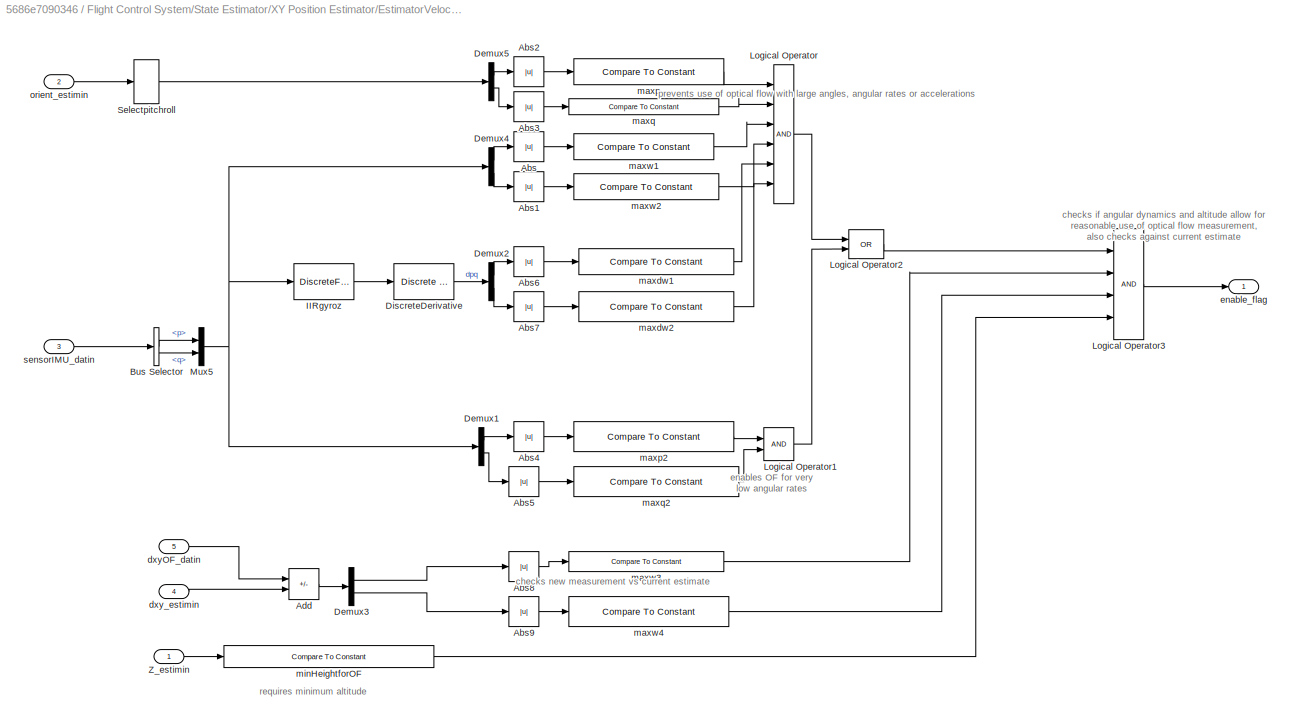
BLOCK [SubSystem] Flight Control System/State Estimator/XY Position Estimator/EstimatorVelocity/DataHandling
BLOCK [Abs] Flight Control System/State Estimator/XY Position Estimator/EstimatorVelocity/DataHandling/Abs
  SaturateOnIntegerOverflow = off
BLOCK [Abs] Flight Control System/State Estimator/XY Position Estimator/EstimatorVelocity/DataHandling/Abs1
  SaturateOnIntegerOverflow = off
BLOCK [Abs] Flight Control System/State Estimator/XY Position Estimator/EstimatorVelocity/DataHandling/Abs2
  SaturateOnIntegerOverflow = off
BLOCK [Abs] Flight Control System/State Estimator/XY Position Estimator/EstimatorVelocity/DataHandling/Abs3
  SaturateOnIntegerOverflow = off
BLOCK [Abs] Flight Control System/State Estimator/XY Position Estimator/EstimatorVelocity/DataHandling/Abs4
  SaturateOnIntegerOverflow = off
BLOCK [Abs] Flight Control System/State Estimator/XY Position Estimator/EstimatorVelocity/DataHandling/Abs5
  SaturateOnIntegerOverflow = off
BLOCK [Abs] Flight Control System/State Estimator/XY Position Estimator/EstimatorVelocity/DataHandling/Abs6
  SaturateOnIntegerOverflow = off
BLOCK [Abs] Flight Control System/State Estimator/XY Position Estimator/EstimatorVelocity/DataHandling/Abs7
  SaturateOnIntegerOverflow = off
BLOCK [Abs] Flight Control System/State Estimator/XY Position Estimator/EstimatorVelocity/DataHandling/Abs8
  SaturateOnIntegerOverflow = off
BLOCK [Abs] Flight Control System/State Estimator/XY Position Estimator/EstimatorVelocity/DataHandling/Abs9
  SaturateOnIntegerOverflow = off
BLOCK [Sum] Flight Control System/State Estimator/XY Position Estimator/EstimatorVelocity/DataHandling/Add
  IconShape = rectangular
  Inputs = -+
BLOCK [BusSelector] Flight Control System/State Estimator/XY Position Estimator/EstimatorVelocity/DataHandling/Bus Selector
  OutputSignals = p,q
BLOCK [Demux] Flight Control System/State Estimator/XY Position Estimator/EstimatorVelocity/DataHandling/Demux1
  Outputs = 2
BLOCK [Demux] Flight Control System/State Estimator/XY Position Estimator/EstimatorVelocity/DataHandling/Demux2
  Outputs = 2
BLOCK [Demux] Flight Control System/State Estimator/XY Position Estimator/EstimatorVelocity/DataHandling/Demux3
  Outputs = 2
BLOCK [Demux] Flight Control System/State Estimator/XY Position Estimator/EstimatorVelocity/DataHandling/Demux4
  Outputs = 2
BLOCK [Demux] Flight Control System/State Estimator/XY Position Estimator/EstimatorVelocity/DataHandling/Demux5
  Outputs = 2
BLOCK [Reference] Flight Control System/State Estimator/XY Position Estimator/EstimatorVelocity/DataHandling/DiscreteDerivative  REF=simulink/Discrete/Discrete Derivative
  SourceBlock = simulink/Discrete/Discrete Derivative
  SourceType = Discrete Derivative
BLOCK [DiscreteFilter] Flight Control System/State Estimator/XY Position Estimator/EstimatorVelocity/DataHandling/IIRgyroz
  Denominator = Estimator.IMU.filterGyroDen
  InputPortMap = u0
  Numerator = Estimator.IMU.filterGyroNum
BLOCK [Logic] Flight Control System/State Estimator/XY Position Estimator/EstimatorVelocity/DataHandling/Logical Operator
  AllPortsSameDT = off
  Inputs = 6
  OutDataTypeStr = boolean
BLOCK [Logic] Flight Control System/State Estimator/XY Position Estimator/EstimatorVelocity/DataHandling/Logical Operator1
  AllPortsSameDT = off
  OutDataTypeStr = boolean
BLOCK [Logic] Flight Control System/State Estimator/XY Position Estimator/EstimatorVelocity/DataHandling/Logical Operator2
  AllPortsSameDT = off
  Operator = OR
  OutDataTypeStr = boolean
BLOCK [Logic] Flight Control System/State Estimator/XY Position Estimator/EstimatorVelocity/DataHandling/Logical Operator3
  AllPortsSameDT = off
  Inputs = 4
  OutDataTypeStr = boolean
BLOCK [Mux] Flight Control System/State Estimator/XY Position Estimator/EstimatorVelocity/DataHandling/Mux5
  DisplayOption = bar
  Inputs = 2
BLOCK [Selector] Flight Control System/State Estimator/XY Position Estimator/EstimatorVelocity/DataHandling/Selectpitchroll
  IndexOptions = Index vector (dialog)
  Indices = [2 3]
  InputPortWidth = 3
  OutputSizes = 1
BLOCK [Inport] Flight Control System/State Estimator/XY Position Estimator/EstimatorVelocity/DataHandling/Z_estimin
BLOCK [Inport] Flight Control System/State Estimator/XY Position Estimator/EstimatorVelocity/DataHandling/dxyOF_datin
  Port = 5
BLOCK [Inport] Flight Control System/State Estimator/XY Position Estimator/EstimatorVelocity/DataHandling/dxy_estimin
  Port = 4
BLOCK [Outport] Flight Control System/State Estimator/XY Position Estimator/EstimatorVelocity/DataHandling/enable_flag
  VectorParamsAs1DForOutWhenUnconnected = off
BLOCK [Reference] Flight Control System/State Estimator/XY Position Estimator/EstimatorVelocity/DataHandling/maxdw1  REF=simulink/Logic and Bit
Operations/Compare
To Constant
  SourceBlock = simulink/Logic and Bit\nOperations/Compare\nTo Constant
  SourceType = Compare To Constant
BLOCK [Reference] Flight Control System/State Estimator/XY Position Estimator/EstimatorVelocity/DataHandling/maxdw2  REF=simulink/Logic and Bit
Operations/Compare
To Constant
  SourceBlock = simulink/Logic and Bit\nOperations/Compare\nTo Constant
  SourceType = Compare To Constant
BLOCK [Reference] Flight Control System/State Estimator/XY Position Estimator/EstimatorVelocity/DataHandling/maxp  REF=simulink/Logic and Bit
Operations/Compare
To Constant
  SourceBlock = simulink/Logic and Bit\nOperations/Compare\nTo Constant
  SourceType = Compare To Constant
BLOCK [Reference] Flight Control System/State Estimator/XY Position Estimator/EstimatorVelocity/DataHandling/maxp2  REF=simulink/Logic and Bit
Operations/Compare
To Constant
  SourceBlock = simulink/Logic and Bit\nOperations/Compare\nTo Constant
  SourceType = Compare To Constant
BLOCK [Reference] Flight Control System/State Estimator/XY Position Estimator/EstimatorVelocity/DataHandling/maxq  REF=simulink/Logic and Bit
Operations/Compare
To Constant
  SourceBlock = simulink/Logic and Bit\nOperations/Compare\nTo Constant
  SourceType = Compare To Constant
BLOCK [Reference] Flight Control System/State Estimator/XY Position Estimator/EstimatorVelocity/DataHandling/maxq2  REF=simulink/Logic and Bit
Operations/Compare
To Constant
  SourceBlock = simulink/Logic and Bit\nOperations/Compare\nTo Constant
  SourceType = Compare To Constant
BLOCK [Reference] Flight Control System/State Estimator/XY Position Estimator/EstimatorVelocity/DataHandling/maxw1  REF=simulink/Logic and Bit
Operations/Compare
To Constant
  SourceBlock = simulink/Logic and Bit\nOperations/Compare\nTo Constant
  SourceType = Compare To Constant
BLOCK [Reference] Flight Control System/State Estimator/XY Position Estimator/EstimatorVelocity/DataHandling/maxw2  REF=simulink/Logic and Bit
Operations/Compare
To Constant
  SourceBlock = simulink/Logic and Bit\nOperations/Compare\nTo Constant
  SourceType = Compare To Constant
BLOCK [Reference] Flight Control System/State Estimator/XY Position Estimator/EstimatorVelocity/DataHandling/maxw3  REF=simulink/Logic and Bit
Operations/Compare
To Constant
  SourceBlock = simulink/Logic and Bit\nOperations/Compare\nTo Constant
  SourceType = Compare To Constant
BLOCK [Reference] Flight Control System/State Estimator/XY Position Estimator/EstimatorVelocity/DataHandling/maxw4  REF=simulink/Logic and Bit
Operations/Compare
To Constant
  SourceBlock = simulink/Logic and Bit\nOperations/Compare\nTo Constant
  SourceType = Compare To Constant
BLOCK [Reference] Flight Control System/State Estimator/XY Position Estimator/EstimatorVelocity/DataHandling/minHeightforOF  REF=simulink/Logic and Bit
Operations/Compare
To Constant
  SourceBlock = simulink/Logic and Bit\nOperations/Compare\nTo Constant
  SourceType = Compare To Constant
BLOCK [Inport] Flight Control System/State Estimator/XY Position Estimator/EstimatorVelocity/DataHandling/orient_estimin
  Port = 2
BLOCK [Inport] Flight Control System/State Estimator/XY Position Estimator/EstimatorVelocity/DataHandling/sensorIMU_datin
  Port = 3
BLOCK [Delay] Flight Control System/State Estimator/XY Position Estimator/EstimatorVelocity/Delay
  DelayLength = 1
  InitialCondition = 0
  InputPortMap = u0
BLOCK [Reference] Flight Control System/State Estimator/XY Position Estimator/EstimatorVelocity/KalmanFilter_dxdy  REF=ctrlSharedLib/Kalman Filter
  SourceBlock = ctrlSharedLib/Kalman Filter
  SourceType = ctrlKalmanFilter
BLOCK [Selector] Flight Control System/State Estimator/XY Position Estimator/EstimatorVelocity/Selector1
  IndexOptions = Index vector (dialog)
  Indices = [1 2]
  InputPortWidth = 4
  OutputSizes = 1
BLOCK [SubSystem] Flight Control System/State Estimator/XY Position Estimator/EstimatorVelocity/XY velocity w//o angular velocity compensation
BLOCK [Product] Flight Control System/State Estimator/XY Position Estimator/EstimatorVelocity/XY velocity w//o angular velocity compensation/ 
  Inputs = **
BLOCK [Reference] Flight Control System/State Estimator/XY Position Estimator/EstimatorVelocity/XY velocity w//o angular velocity compensation/Compare To Constant  REF=simulink/Logic and Bit
Operations/Compare
To Constant
  SourceBlock = simulink/Logic and Bit\nOperations/Compare\nTo Constant
  SourceType = Compare To Constant
BLOCK [Reference] Flight Control System/State Estimator/XY Position Estimator/EstimatorVelocity/XY velocity w//o angular velocity compensation/Counter Free-Running  REF=simulink/Sources/Counter
Free-Running
  SourceBlock = simulink/Sources/Counter\nFree-Running
  SourceType = Counter Free-Running
BLOCK [Gain] Flight Control System/State Estimator/XY Position Estimator/EstimatorVelocity/XY velocity w//o angular velocity compensation/Gain
  Gain = -1
BLOCK [Selector] Flight Control System/State Estimator/XY Position Estimator/EstimatorVelocity/XY velocity w//o angular velocity compensation/Select dxy
  IndexOptions = Index vector (dialog)
  Indices = [1 2]
  InputPortWidth = 3
  OutputSizes = 1
BLOCK [Switch] Flight Control System/State Estimator/XY Position Estimator/EstimatorVelocity/XY velocity w//o angular velocity compensation/Switch
  Criteria = u2 > Threshold
  InputSameDT = off
  SaturateOnIntegerOverflow = off
BLOCK [Gain] Flight Control System/State Estimator/XY Position Estimator/EstimatorVelocity/XY velocity w//o angular velocity compensation/opticalFlowErrorCorrect
  Gain = 1.15
BLOCK [Inport] Flight Control System/State Estimator/XY Position Estimator/EstimatorVelocity/XY velocity w//o angular velocity compensation/optical_flow
BLOCK [Outport] Flight Control System/State Estimator/XY Position Estimator/EstimatorVelocity/XY velocity w//o angular velocity compensation/optical_flow_dx_dy
BLOCK [Inport] Flight Control System/State Estimator/XY Position Estimator/EstimatorVelocity/XY velocity w//o angular velocity compensation/z_estimate
  Port = 2
BLOCK [Inport] Flight Control System/State Estimator/XY Position Estimator/EstimatorVelocity/Z_estimin
  Port = 2
  SampleTime = Ts
BLOCK [InportShadow] Flight Control System/State Estimator/XY Position Estimator/EstimatorVelocity/Z_estimin1
  Port = 2
  SampleTime = Ts
BLOCK [Inport] Flight Control System/State Estimator/XY Position Estimator/EstimatorVelocity/angular velocity
  Port = 5
BLOCK [Sum] Flight Control System/State Estimator/XY Position Estimator/EstimatorVelocity/angular velocity compensation
  IconShape = rectangular
BLOCK [Outport] Flight Control System/State Estimator/XY Position Estimator/EstimatorVelocity/dxy_estimout
  VectorParamsAs1DForOutWhenUnconnected = off
BLOCK [Inport] Flight Control System/State Estimator/XY Position Estimator/EstimatorVelocity/opticalFlow_datin
BLOCK [Inport] Flight Control System/State Estimator/XY Position Estimator/EstimatorVelocity/orient_estimin
  Port = 4
BLOCK [Inport] Flight Control System/State Estimator/XY Position Estimator/EstimatorVelocity/sensorIMU_datin
  Port = 3
BLOCK [SubSystem] Flight Control System/State Estimator/XY Position Estimator/EstimatorXYPosition
BLOCK [Math] Flight Control System/State Estimator/XY Position Estimator/EstimatorXYPosition/Math Function
  Operator = transpose
  SignedPower = on
BLOCK [Mux] Flight Control System/State Estimator/XY Position Estimator/EstimatorXYPosition/Mux2
  DisplayOption = bar
  Inputs = 2
BLOCK [Product] Flight Control System/State Estimator/XY Position Estimator/EstimatorXYPosition/Product
  Multiplication = Matrix(*)
BLOCK [Reference] Flight Control System/State Estimator/XY Position Estimator/EstimatorXYPosition/Rotation Angles to Direction Cosine Matrix  REF=sharedtransform/Rotation Angles to
Direction Cosine Matrix
  AttributesFormatString = Rotation Order: %<rotationOrder>
  SourceBlock = sharedtransform/Rotation Angles to\nDirection Cosine Matrix
  SourceType = Ang2DCM
BLOCK [Selector] Flight Control System/State Estimator/XY Position Estimator/EstimatorXYPosition/SelectdXY
  IndexOptions = Index vector (dialog)
  Indices = [1 2]
  InputPortWidth = 3
  OutputSizes = 1
BLOCK [DiscreteIntegrator] Flight Control System/State Estimator/XY Position Estimator/EstimatorXYPosition/SimplyIntegrateVelocity
  ExternalReset = rising
  ICPrevOutput = DiscIntNeverNeededParam
  ICPrevScaledInput = DiscIntNeverNeededParam
  InitialConditionSetting = Auto
  SampleTime = Ts
BLOCK [Outport] Flight Control System/State Estimator/XY Position Estimator/EstimatorXYPosition/XY_estimout
  VectorParamsAs1DForOutWhenUnconnected = off
BLOCK [Inport] Flight Control System/State Estimator/XY Position Estimator/EstimatorXYPosition/controlModePosVSOrient_flagin
  Port = 3
BLOCK [Inport] Flight Control System/State Estimator/XY Position Estimator/EstimatorXYPosition/dxy_estimin
BLOCK [Inport] Flight Control System/State Estimator/XY Position Estimator/EstimatorXYPosition/dz_estimin
  Port = 4
BLOCK [Inport] Flight Control System/State Estimator/XY Position Estimator/EstimatorXYPosition/orient_estimin
  NameLocation = top
  Port = 2
  SampleTime = Ts
BLOCK [Outport] Flight Control System/State Estimator/XY Position Estimator/XY_estimout
  VectorParamsAs1DForOutWhenUnconnected = off
BLOCK [Inport] Flight Control System/State Estimator/XY Position Estimator/Z_estimin
  Port = 4
BLOCK [Inport] Flight Control System/State Estimator/XY Position Estimator/angular velocity
  Port = 7
BLOCK [Inport] Flight Control System/State Estimator/XY Position Estimator/controlModePosVSOrient_flagin
  Port = 2
BLOCK [Outport] Flight Control System/State Estimator/XY Position Estimator/dxy_estimout
  Port = 2
  VectorParamsAs1DForOutWhenUnconnected = off
BLOCK [Inport] Flight Control System/State Estimator/XY Position Estimator/dz_estimin
  Port = 5
BLOCK [Inport] Flight Control System/State Estimator/XY Position Estimator/opticalFlow_datin
BLOCK [Inport] Flight Control System/State Estimator/XY Position Estimator/orient_estimin
  Port = 6
BLOCK [Inport] Flight Control System/State Estimator/XY Position Estimator/sensorIMU_datin
  Port = 3
BLOCK [Inport] Flight Control System/State Estimator/controlModePosVSOrient_flagin
  OutDataTypeStr = boolean
BLOCK [Inport] Flight Control System/State Estimator/opticalFlow_datin
  Port = 3
BLOCK [Inport] Flight Control System/State Estimator/sensorCalibration_datin
  Port = 4
BLOCK [Inport] Flight Control System/State Estimator/sensor_data_in
  Port = 2
BLOCK [ToWorkspace] Flight Control System/To Workspace
  FixptAsFi = on
  MaxDataPoints = inf
  SampleTime = -1
  SaveFormat = Structure With Time
  VariableName = estimatedStates
BLOCK [Constant] Flight Control System/controlModePosVsOrient
  OutDataTypeStr = boolean
BLOCK [Outport] Flight Control System/motorCmds
  VectorParamsAs1DForOutWhenUnconnected = off
BLOCK [Inport] Image Data
  BusOutputAsStruct = on
  InitFcn = codertarget.parrot.internal.inportCallback(gcb);
  OutDataTypeStr = uint8
  Port = 3
  PortDimensions = [4 9600]
  Tag = IP_IN
BLOCK [SubSystem] Image Processing System
  InitFcn = codertarget.parrot.internal.ipSubsystemCallback(gcb);
  RTWFcnName = ImageFunction
  RTWFcnNameOpts = User specified
  RTWSystemCode = Inline
  SystemSampleTime = 40*Ts
  Tag = IP_SUB
  TreatAsAtomicUnit = on
  TreatAsGroupedWhenPropagatingVariantConditions = off
BLOCK [Constant] Image Processing System/Constant
  Value = 0
BLOCK [Inport] Image Processing System/Image Data
BLOCK [Reference] Image Processing System/PARROT Image Conversion  REF=parrotlib/PARROT Image Conversion
  SourceBlock = parrotlib/PARROT Image Conversion
  SourceType = parrot.ImageProcess
BLOCK [Terminator] Image Processing System/Terminator
  NameLocation = top
BLOCK [Terminator] Image Processing System/Terminator1
  NameLocation = top
BLOCK [Terminator] Image Processing System/Terminator2
  NameLocation = top
BLOCK [Outport] Image Processing System/Vision-based Data
  VectorParamsAs1DForOutWhenUnconnected = off
BLOCK [RateTransition] Rate Transition
  Deterministic = off
BLOCK [Inport] Sensors
  BusOutputAsStruct = on
  OutDataTypeStr = Bus: SensorsBus
  Port = 2
ANNOTATION (root): <copyright redacted>
ANNOTATION (root): Flight Control System
ANNOTATION Flight Control System: Derived from the work by Sertac Karaman and Fabian Riether
ANNOTATION Flight Control System: Position or Orientation Control
ANNOTATION Flight Control System: Use '1' for X, Y, Z and Yaw control Use '0' for Pitch, Roll and Yaw control
ANNOTATION Flight Control System: Use this subsystem to change the path of the Minidrone using the Vision-based Data as an additional input.
ANNOTATION Flight Control System/Crash Prediction Flags/Normal condition and landing: If the land_flag is set, wait till the drone reaches a height of -0.3m and then shut down the drone using a 255 flag
ANNOTATION Flight Control System/Crash Prediction Flags/Normal condition and landing: When the land_drone flag is not set, pass a '0' to the flag to indicate no error
ANNOTATION Flight Control System/Crash Prediction Flags/Optical flow error check: If the land_flag is set, then disable Optical Flow check
ANNOTATION Flight Control System/State Estimator: Derived frrom the work by Sertac Karaman and Fabian Riether
ANNOTATION Flight Control System/State Estimator/Attitude Estimator: This estimator algorithm is developed for linearized kinematic model (model is linearized about hovering condition) This estimator may not work for large angle / aggressive maneuvers.
ANNOTATION Flight Control System/State Estimator/Attitude Estimator: ACCELEROMETER CHECK
ANNOTATION Flight Control System/State Estimator/Attitude Estimator/Pitch_Kalman: Gyroscope's bias is susceptible to factors like "temperature" and "Gyro bias stability" and it can vary during the flight. It is therefore estimated using this Kalman filter making use of Accelerometer data
ANNOTATION Flight Control System/State Estimator/Attitude Estimator/Pitch_Kalman: Linear Kalman filter is used for the Pitch and Roll estimation. The states are the corresponding Euler angle and Angular rate bias respectively
ANNOTATION Flight Control System/State Estimator/Attitude Estimator/Roll_Kalman: Gyroscope's bias is susceptible to factors like "temperature" and "Gyro bias stability" and it can vary during the flight. It is therefore estimated using the Kalman filter making use of accelerometer data
ANNOTATION Flight Control System/State Estimator/Attitude Estimator/Roll_Kalman: Linear Kalman filter is used for the Pitch and Roll estimation. The states are the corresponding Euler angle and Angular rate bias respectively
ANNOTATION Flight Control System/State Estimator/Attitude Estimator/Yaw_integrator: Currently yaw angle is obtained solely by integrating the gyroscope output. This yaw estimate can drift with time.
ANNOTATION Flight Control System/State Estimator/Attitude Estimator/Yaw_integrator: Yaw angle is not constrained between -180 to 180 degrees
ANNOTATION Flight Control System/State Estimator/SensorPreprocessing: IMU
ANNOTATION Flight Control System/State Estimator/SensorPreprocessing/Temperature Compensation: Gyroscope's bias is affected by temperature.This won't be a problem for Pitch and Roll angle estimation as the actual gyroscope bias in the Pitch and Roll axis are estimated during the flight. However the yaw orientation is obtained by integrating the gyroscope output and it may drift with time. Even the preflight calibration which is done cannot compensate for this problem as the gyro bis varies ...<+18ch>
ANNOTATION Flight Control System/State Estimator/XY Position Estimator/EstimatorVelocity/Angular velocity compensation for optical flow: Optical flow readings are affected by both linear and angular velocity of the drone. We need to subtract the effect of angular velocity before using the flow data
ANNOTATION Flight Control System/State Estimator/XY Position Estimator/EstimatorVelocity/DataHandling: checks if angular dynamics and altitude allow for reasonable use of optical flow measurement, also checks against current estimate
ANNOTATION Flight Control System/State Estimator/XY Position Estimator/EstimatorVelocity/DataHandling: checks new measurement vs current estimate
ANNOTATION Flight Control System/State Estimator/XY Position Estimator/EstimatorVelocity/DataHandling: enables OF for very low angular rates
ANNOTATION Flight Control System/State Estimator/XY Position Estimator/EstimatorVelocity/DataHandling: prevents use of optical flow with large angles, angular rates or accelerations
ANNOTATION Flight Control System/State Estimator/XY Position Estimator/EstimatorVelocity/DataHandling: requires minimum altitude
ANNOTATION Flight Control System/State Estimator/XY Position Estimator/EstimatorVelocity/XY velocity w//o angular velocity compensation: Optical flow raw readings are converted to velocity in m/s based on the estimated altitude
ANNOTATION Flight Control System/State Estimator/XY Position Estimator/EstimatorXYPosition: Switching from orientationControl to Position control reset the current world position estimate (happens when using no markers)
ANNOTATION Image Processing System: Note: Develop the image processing algorithm and use the 'Vision-based Data' outport to send the processed data to the Flight Control System. The output data can be of any type and size (Try to avoid large data transfers).
ANNOTATION Image Processing System: Note: The PARROT Image Conversion block takes the raw Y1UY2V data provided by the drone's downward-facing camera, and converts the color space to the desired RGB or YUV output.
LINE AC cmd:1 -> Flight Control System:1
LINE Flight Control System/Bus Selector1:1 -> Flight Control System/State Estimator:3
LINE Flight Control System/Bus Selector4:1 -> Flight Control System/Bus Selector1:1
LINE Flight Control System/Bus Selector4:2 -> Flight Control System/State Estimator:4
LINE Flight Control System/Bus Selector:1 -> Flight Control System/ :1
LINE Flight Control System/Bus Selector:2 -> Flight Control System/ 1:1
LINE Flight Control System/Bus Selector:3 -> Flight Control System/    :1
LINE Flight Control System/Control Mode Update:1 -> Flight Control System/Path Planning:1
LINE Flight Control System/Controller/   :1 -> Flight Control System/Controller/Bus to Vector:1
LINE Flight Control System/Controller/ :1 -> Flight Control System/Controller/thrustsToMotorCommands:1
LINE Flight Control System/Controller/Bus Creator:1 -> Flight Control System/Controller/Bus to Vector1:1
LINE Flight Control System/Controller/Bus to Vector1:1 -> Flight Control System/Controller/Subtract:2
LINE Flight Control System/Controller/Bus to Vector:1 -> Flight Control System/Controller/Subtract:1
LINE Flight Control System/Controller/Demux:1 -> Flight Control System/Controller/Bus Creator:1
LINE Flight Control System/Controller/Demux:2 -> Flight Control System/Controller/Bus Creator:2
LINE Flight Control System/Controller/Demux:3 -> Flight Control System/Controller/Bus Creator:3
LINE Flight Control System/Controller/Discrete State-Space:1 -> Flight Control System/Controller/ :1
LINE Flight Control System/Controller/In Bus Element2:1 -> Flight Control System/Controller/Selector3:1
LINE Flight Control System/Controller/In Bus Element:1 -> Flight Control System/Controller/Demux:1
LINE Flight Control System/Controller/Linearization Input:1 -> Flight Control System/Controller/ :2
LINE Flight Control System/Controller/RMS:1 -> Flight Control System/Controller/Scope:1
LINE Flight Control System/Controller/Selector3:1 -> Flight Control System/Controller/Bus Creator:6
NET Flight Control System/Controller/Subtract:1 -> Flight Control System/Controller/Discrete State-Space:1, Flight Control System/Controller/RMS:1
LINE Flight Control System/Controller/Switch yaw and roll order:1 -> Flight Control System/Controller/   :1
LINE Flight Control System/Controller/Switch yaw and roll order:10 -> Flight Control System/Controller/   :10
LINE Flight Control System/Controller/Switch yaw and roll order:11 -> Flight Control System/Controller/   :11
LINE Flight Control System/Controller/Switch yaw and roll order:12 -> Flight Control System/Controller/   :12
LINE Flight Control System/Controller/Switch yaw and roll order:2 -> Flight Control System/Controller/   :2
LINE Flight Control System/Controller/Switch yaw and roll order:3 -> Flight Control System/Controller/   :3
LINE Flight Control System/Controller/Switch yaw and roll order:4 -> Flight Control System/Controller/   :6
LINE Flight Control System/Controller/Switch yaw and roll order:5 -> Flight Control System/Controller/   :5
LINE Flight Control System/Controller/Switch yaw and roll order:6 -> Flight Control System/Controller/   :4
LINE Flight Control System/Controller/Switch yaw and roll order:7 -> Flight Control System/Controller/   :7
LINE Flight Control System/Controller/Switch yaw and roll order:8 -> Flight Control System/Controller/   :8
LINE Flight Control System/Controller/Switch yaw and roll order:9 -> Flight Control System/Controller/   :9
NET Flight Control System/Controller/Zero Reference:1 -> Flight Control System/Controller/Bus Creator:10, Flight Control System/Controller/Bus Creator:11, Flight Control System/Controller/Bus Creator:12, Flight Control System/Controller/Bus Creator:4, Flight Control System/Controller/Bus Creator:5, Flight Control System/Controller/Bus Creator:7, Flight Control System/Controller/Bus Creator:8, Flight Control System/Controller/Bus Creator:9
LINE Flight Control System/Controller/states_estim:1 -> Flight Control System/Controller/Switch yaw and roll order:1
LINE Flight Control System/Controller/thrustsToMotorCommands/Cast To Double:1 -> Flight Control System/Controller/thrustsToMotorCommands/Scope:1
LINE Flight Control System/Controller/thrustsToMotorCommands/Compare To Constant:1 -> Flight Control System/Controller/thrustsToMotorCommands/Logical Operator:1
LINE Flight Control System/Controller/thrustsToMotorCommands/Constant:1 -> Flight Control System/Controller/thrustsToMotorCommands/Dot Product:1
LINE Flight Control System/Controller/thrustsToMotorCommands/Dot Product:1 -> Flight Control System/Controller/thrustsToMotorCommands/Compare To Constant:1
NET Flight Control System/Controller/thrustsToMotorCommands/Logical Operator:1 -> Flight Control System/Controller/thrustsToMotorCommands/Cast To Double:1, Flight Control System/Controller/thrustsToMotorCommands/Max Thrust Exceeded:1
LINE Flight Control System/Controller/thrustsToMotorCommands/MotorDirections:1 -> Flight Control System/Controller/thrustsToMotorCommands/motors_cmdout:1
NET Flight Control System/Controller/thrustsToMotorCommands/Saturation5:1 -> Flight Control System/Controller/thrustsToMotorCommands/Dot Product:2, Flight Control System/Controller/thrustsToMotorCommands/MotorDirections:1
LINE Flight Control System/Controller/thrustsToMotorCommands/ThrustToMotorCommand:1 -> Flight Control System/Controller/thrustsToMotorCommands/Saturation5:1
LINE Flight Control System/Controller/thrustsToMotorCommands/thrusts_refin:1 -> Flight Control System/Controller/thrustsToMotorCommands/ThrustToMotorCommand:1
LINE Flight Control System/Controller/thrustsToMotorCommands:1 -> Flight Control System/Controller/motors_refout:1
LINE Flight Control System/Controller:1 -> Flight Control System/motorCmds:1
LINE Flight Control System/Crash Prediction Flags/Abs1:1 -> Flight Control System/Crash Prediction Flags/Compare To Constant1:1
LINE Flight Control System/Crash Prediction Flags/Abs2:1 -> Flight Control System/Crash Prediction Flags/Compare To Constant2:1
LINE Flight Control System/Crash Prediction Flags/Abs3:1 -> Flight Control System/Crash Prediction Flags/Compare To Constant3:1
LINE Flight Control System/Crash Prediction Flags/Abs4:1 -> Flight Control System/Crash Prediction Flags/Compare To Constant4:1
LINE Flight Control System/Crash Prediction Flags/Abs5:1 -> Flight Control System/Crash Prediction Flags/Compare To Constant5:1
LINE Flight Control System/Crash Prediction Flags/Abs:1 -> Flight Control System/Crash Prediction Flags/Compare To Constant:1
LINE Flight Control System/Crash Prediction Flags/Alt_prs:1 -> Flight Control System/Crash Prediction Flags/Difference between sonar and pressure:2
LINE Flight Control System/Crash Prediction Flags/Altitude error check/         :1 -> Flight Control System/Crash Prediction Flags/Altitude error check/Abs  :1
LINE Flight Control System/Crash Prediction Flags/Altitude error check/    :1 -> Flight Control System/Crash Prediction Flags/Altitude error check/         :3
LINE Flight Control System/Crash Prediction Flags/Altitude error check/0.5 meters:1 -> Flight Control System/Crash Prediction Flags/Altitude error check/GreaterThan  :2
LINE Flight Control System/Crash Prediction Flags/Altitude error check/Abs  :1 -> Flight Control System/Crash Prediction Flags/Altitude error check/GreaterThan  :1
LINE Flight Control System/Crash Prediction Flags/Altitude error check/Data Type Conversion4:1 -> Flight Control System/Crash Prediction Flags/Altitude error check/Alt_error:1
LINE Flight Control System/Crash Prediction Flags/Altitude error check/Diff:1 -> Flight Control System/Crash Prediction Flags/Altitude error check/         :1
LINE Flight Control System/Crash Prediction Flags/Altitude error check/Enable_Alt_Check:1 -> Flight Control System/Crash Prediction Flags/Altitude error check/         :2
LINE Flight Control System/Crash Prediction Flags/Altitude error check/GreaterThan  :1 -> Flight Control System/Crash Prediction Flags/Altitude error check/Data Type Conversion4:1
LINE Flight Control System/Crash Prediction Flags/Altitude error check:1 -> Flight Control System/Crash Prediction Flags/If:4
LINE Flight Control System/Crash Prediction Flags/Bus Selector1:1 -> Flight Control System/Crash Prediction Flags/Bus Selector:1
LINE Flight Control System/Crash Prediction Flags/Bus Selector2:1 -> Flight Control System/Crash Prediction Flags/Difference between sonar and pressure:1
LINE Flight Control System/Crash Prediction Flags/Bus Selector4:1 -> Flight Control System/Crash Prediction Flags/Abs:1
LINE Flight Control System/Crash Prediction Flags/Bus Selector4:2 -> Flight Control System/Crash Prediction Flags/Abs1:1
LINE Flight Control System/Crash Prediction Flags/Bus Selector4:3 -> Flight Control System/Crash Prediction Flags/Subtract:1
LINE Flight Control System/Crash Prediction Flags/Bus Selector4:4 -> Flight Control System/Crash Prediction Flags/Subtract1:1
LINE Flight Control System/Crash Prediction Flags/Bus Selector:1 -> Flight Control System/Crash Prediction Flags/Demux:1
LINE Flight Control System/Crash Prediction Flags/Compare To Constant1:1 -> Flight Control System/Crash Prediction Flags/Logical Operator:2
LINE Flight Control System/Crash Prediction Flags/Compare To Constant2:1 -> Flight Control System/Crash Prediction Flags/Logical Operator1:2
LINE Flight Control System/Crash Prediction Flags/Compare To Constant3:1 -> Flight Control System/Crash Prediction Flags/Logical Operator2:1
LINE Flight Control System/Crash Prediction Flags/Compare To Constant4:1 -> Flight Control System/Crash Prediction Flags/Logical Operator1:1
LINE Flight Control System/Crash Prediction Flags/Compare To Constant5:1 -> Flight Control System/Crash Prediction Flags/Logical Operator2:2
LINE Flight Control System/Crash Prediction Flags/Compare To Constant:1 -> Flight Control System/Crash Prediction Flags/Logical Operator:1
LINE Flight Control System/Crash Prediction Flags/Counter Free-Running:1 -> Flight Control System/Crash Prediction Flags/GreaterThan:1
LINE Flight Control System/Crash Prediction Flags/Data Type Conversion1:1 -> Flight Control System/Crash Prediction Flags/If:2
LINE Flight Control System/Crash Prediction Flags/Data Type Conversion:1 -> Flight Control System/Crash Prediction Flags/If:1
NET Flight Control System/Crash Prediction Flags/Demux:1 -> Flight Control System/Crash Prediction Flags/Abs4:1, Flight Control System/Crash Prediction Flags/Gain:1
NET Flight Control System/Crash Prediction Flags/Demux:2 -> Flight Control System/Crash Prediction Flags/Abs5:1, Flight Control System/Crash Prediction Flags/Gain1:1
LINE Flight Control System/Crash Prediction Flags/Demux:3 -> Flight Control System/Crash Prediction Flags/Optical flow error check:1
LINE Flight Control System/Crash Prediction Flags/Difference between sonar and pressure:1 -> Flight Control System/Crash Prediction Flags/Altitude error check:2
LINE Flight Control System/Crash Prediction Flags/Gain1:1 -> Flight Control System/Crash Prediction Flags/Subtract1:2
LINE Flight Control System/Crash Prediction Flags/Gain:1 -> Flight Control System/Crash Prediction Flags/Subtract:2
LINE Flight Control System/Crash Prediction Flags/Geofencing error/Constant:1 -> Flight Control System/Crash Prediction Flags/Geofencing error/Out1:1
LINE Flight Control System/Crash Prediction Flags/Geofencing error:1 -> Flight Control System/Crash Prediction Flags/Merge:1
NET Flight Control System/Crash Prediction Flags/GreaterThan:1 -> Flight Control System/Crash Prediction Flags/Altitude error check:1, Flight Control System/Crash Prediction Flags/Optical flow error check:3
LINE Flight Control System/Crash Prediction Flags/If:1 -> Flight Control System/Crash Prediction Flags/Geofencing error:ifaction
LINE Flight Control System/Crash Prediction Flags/If:2 -> Flight Control System/Crash Prediction Flags/estimator//Optical flow error:ifaction
LINE Flight Control System/Crash Prediction Flags/If:3 -> Flight Control System/Crash Prediction Flags/No optical flow :ifaction
LINE Flight Control System/Crash Prediction Flags/If:4 -> Flight Control System/Crash Prediction Flags/Ultrasound improper:ifaction
LINE Flight Control System/Crash Prediction Flags/If:5 -> Flight Control System/Crash Prediction Flags/Normal condition and landing:ifaction
LINE Flight Control System/Crash Prediction Flags/Logical Operator1:1 -> Flight Control System/Crash Prediction Flags/Logical Operator3:1
LINE Flight Control System/Crash Prediction Flags/Logical Operator2:1 -> Flight Control System/Crash Prediction Flags/Logical Operator3:2
LINE Flight Control System/Crash Prediction Flags/Logical Operator3:1 -> Flight Control System/Crash Prediction Flags/Data Type Conversion1:1
LINE Flight Control System/Crash Prediction Flags/Logical Operator:1 -> Flight Control System/Crash Prediction Flags/Data Type Conversion:1
LINE Flight Control System/Crash Prediction Flags/Merge:1 -> Flight Control System/Crash Prediction Flags/Flag:1
LINE Flight Control System/Crash Prediction Flags/No optical flow /Constant:1 -> Flight Control System/Crash Prediction Flags/No optical flow /Out1:1
LINE Flight Control System/Crash Prediction Flags/No optical flow :1 -> Flight Control System/Crash Prediction Flags/Merge:3
LINE Flight Control System/Crash Prediction Flags/Normal condition and landing/AND:1 -> Flight Control System/Crash Prediction Flags/Normal condition and landing/Switch:2
LINE Flight Control System/Crash Prediction Flags/Normal condition and landing/Bus Selector3:1 -> Flight Control System/Crash Prediction Flags/Normal condition and landing/Check if the drone is 0.3m above ground:1
LINE Flight Control System/Crash Prediction Flags/Normal condition and landing/Check if the drone is 0.3m above ground:1 -> Flight Control System/Crash Prediction Flags/Normal condition and landing/AND:1
LINE Flight Control System/Crash Prediction Flags/Normal condition and landing/Landed:1 -> Flight Control System/Crash Prediction Flags/Normal condition and landing/Switch:1
LINE Flight Control System/Crash Prediction Flags/Normal condition and landing/No_error:1 -> Flight Control System/Crash Prediction Flags/Normal condition and landing/Switch:3
LINE Flight Control System/Crash Prediction Flags/Normal condition and landing/States:1 -> Flight Control System/Crash Prediction Flags/Normal condition and landing/Bus Selector3:1
LINE Flight Control System/Crash Prediction Flags/Normal condition and landing/Switch:1 -> Flight Control System/Crash Prediction Flags/Normal condition and landing/Out1:1
LINE Flight Control System/Crash Prediction Flags/Normal condition and landing/land_flag:1 -> Flight Control System/Crash Prediction Flags/Normal condition and landing/AND:2
LINE Flight Control System/Crash Prediction Flags/Normal condition and landing:1 -> Flight Control System/Crash Prediction Flags/Merge:5
NET Flight Control System/Crash Prediction Flags/Optical flow error check/   :1 -> Flight Control System/Crash Prediction Flags/Optical flow error check/  :1, Flight Control System/Crash Prediction Flags/Optical flow error check/Add:1
LINE Flight Control System/Crash Prediction Flags/Optical flow error check/  :1 -> Flight Control System/Crash Prediction Flags/Optical flow error check/Add:2
LINE Flight Control System/Crash Prediction Flags/Optical flow error check/ :1 -> Flight Control System/Crash Prediction Flags/Optical flow error check/Switch:3
LINE Flight Control System/Crash Prediction Flags/Optical flow error check/ Disable OF check:1 -> Flight Control System/Crash Prediction Flags/Optical flow error check/Switch1:1
LINE Flight Control System/Crash Prediction Flags/Optical flow error check/50 continuous OF errors :1 -> Flight Control System/Crash Prediction Flags/Optical flow error check/Switch1:3
NET Flight Control System/Crash Prediction Flags/Optical flow error check/Add:1 -> Flight Control System/Crash Prediction Flags/Optical flow error check/50 continuous OF errors :1, Flight Control System/Crash Prediction Flags/Optical flow error check/Delay One Step:1
LINE Flight Control System/Crash Prediction Flags/Optical flow error check/Check error condition:1 -> Flight Control System/Crash Prediction Flags/Optical flow error check/   :1
LINE Flight Control System/Crash Prediction Flags/Optical flow error check/Data Type Conversion2:1 -> Flight Control System/Crash Prediction Flags/Optical flow error check/OF_Error:1
LINE Flight Control System/Crash Prediction Flags/Optical flow error check/Delay One Step:1 -> Flight Control System/Crash Prediction Flags/Optical flow error check/  :2
LINE Flight Control System/Crash Prediction Flags/Optical flow error check/Enable_OF_Check:1 -> Flight Control System/Crash Prediction Flags/Optical flow error check/Switch:2
LINE Flight Control System/Crash Prediction Flags/Optical flow error check/OF_status:1 -> Flight Control System/Crash Prediction Flags/Optical flow error check/Switch:1
LINE Flight Control System/Crash Prediction Flags/Optical flow error check/Switch1:1 -> Flight Control System/Crash Prediction Flags/Optical flow error check/Data Type Conversion2:1
LINE Flight Control System/Crash Prediction Flags/Optical flow error check/Switch:1 -> Flight Control System/Crash Prediction Flags/Optical flow error check/Check error condition:1
LINE Flight Control System/Crash Prediction Flags/Optical flow error check/land_flag:1 -> Flight Control System/Crash Prediction Flags/Optical flow error check/Switch1:2
LINE Flight Control System/Crash Prediction Flags/Optical flow error check:1 -> Flight Control System/Crash Prediction Flags/If:3
LINE Flight Control System/Crash Prediction Flags/Sensors:1 -> Flight Control System/Crash Prediction Flags/Bus Selector1:1
LINE Flight Control System/Crash Prediction Flags/Subtract1:1 -> Flight Control System/Crash Prediction Flags/Abs3:1
LINE Flight Control System/Crash Prediction Flags/Subtract:1 -> Flight Control System/Crash Prediction Flags/Abs2:1
LINE Flight Control System/Crash Prediction Flags/Ultrasound improper/Constant:1 -> Flight Control System/Crash Prediction Flags/Ultrasound improper/Out1:1
LINE Flight Control System/Crash Prediction Flags/Ultrasound improper:1 -> Flight Control System/Crash Prediction Flags/Merge:4
LINE Flight Control System/Crash Prediction Flags/Wait  3 Seconds:1 -> Flight Control System/Crash Prediction Flags/GreaterThan:2
LINE Flight Control System/Crash Prediction Flags/estimator//Optical flow error/Constant:1 -> Flight Control System/Crash Prediction Flags/estimator//Optical flow error/Out1:1
LINE Flight Control System/Crash Prediction Flags/estimator//Optical flow error:1 -> Flight Control System/Crash Prediction Flags/Merge:2
LINE Flight Control System/Crash Prediction Flags/land_flag1:1 -> Flight Control System/Crash Prediction Flags/Optical flow error check:2
LINE Flight Control System/Crash Prediction Flags/land_flag:1 -> Flight Control System/Crash Prediction Flags/Normal condition and landing:2
LINE Flight Control System/Crash Prediction Flags/states_estim1:1 -> Flight Control System/Crash Prediction Flags/Bus Selector2:1
LINE Flight Control System/Crash Prediction Flags/states_estim2:1 -> Flight Control System/Crash Prediction Flags/Normal condition and landing:1
LINE Flight Control System/Crash Prediction Flags/states_estim:1 -> Flight Control System/Crash Prediction Flags/Bus Selector4:1
LINE Flight Control System/Crash Prediction Flags:1 -> Flight Control System/Flag:1
LINE Flight Control System/Path Planning/ReferenceValueServerCmds:1 -> Flight Control System/Path Planning/UpdatedReferenceCmds:1
LINE Flight Control System/Path Planning:1 -> Flight Control System/Controller:1
LINE Flight Control System/ReferenceValueServerCmds:1 -> Flight Control System/Control Mode Update:1
NET Flight Control System/Sensors:1 -> Flight Control System/Bus Selector4:1, Flight Control System/Crash Prediction Flags:4, Flight Control System/State Estimator:2
LINE Flight Control System/State Estimator/Altitude Estimator/Bus Selector2:1 -> Flight Control System/State Estimator/Altitude Estimator/Mux2:1
LINE Flight Control System/State Estimator/Altitude Estimator/Bus Selector2:2 -> Flight Control System/State Estimator/Altitude Estimator/Mux2:2
LINE Flight Control System/State Estimator/Altitude Estimator/Bus Selector2:3 -> Flight Control System/State Estimator/Altitude Estimator/Mux2:3
LINE Flight Control System/State Estimator/Altitude Estimator/Data Type Conversion1:1 -> Flight Control System/State Estimator/Altitude Estimator/Mux:1
LINE Flight Control System/State Estimator/Altitude Estimator/Data Type Conversion2:1 -> Flight Control System/State Estimator/Altitude Estimator/dz_estimout:1
LINE Flight Control System/State Estimator/Altitude Estimator/Data Type Conversion:1 -> Flight Control System/State Estimator/Altitude Estimator/Z_estimout:1
NET Flight Control System/State Estimator/Altitude Estimator/Delay2:1 -> Flight Control System/State Estimator/Altitude Estimator/OutlierHandling:3, Flight Control System/State Estimator/Altitude Estimator/outlierBelowFloor:1
NET Flight Control System/State Estimator/Altitude Estimator/Demux:1 -> Flight Control System/State Estimator/Altitude Estimator/Data Type Conversion:1, Flight Control System/State Estimator/Altitude Estimator/Delay2:1
LINE Flight Control System/State Estimator/Altitude Estimator/Demux:2 -> Flight Control System/State Estimator/Altitude Estimator/Mux:2
LINE Flight Control System/State Estimator/Altitude Estimator/KalmanFilter_altitude:1 -> Flight Control System/State Estimator/Altitude Estimator/Demux:1
LINE Flight Control System/State Estimator/Altitude Estimator/Math Function:1 -> Flight Control System/State Estimator/Altitude Estimator/Product:1
LINE Flight Control System/State Estimator/Altitude Estimator/Mux2:1 -> Flight Control System/State Estimator/Altitude Estimator/Product:2
LINE Flight Control System/State Estimator/Altitude Estimator/Mux:1 -> Flight Control System/State Estimator/Altitude Estimator/Product1:2
LINE Flight Control System/State Estimator/Altitude Estimator/OutlierHandling/Absestdiff1:1 -> Flight Control System/State Estimator/Altitude Estimator/OutlierHandling/currentEstimateVeryOffFromPressure:1
LINE Flight Control System/State Estimator/Altitude Estimator/OutlierHandling/Absestdiff2:1 -> Flight Control System/State Estimator/Altitude Estimator/OutlierHandling/currentStateVeryOffsonarflt:1
LINE Flight Control System/State Estimator/Altitude Estimator/OutlierHandling/Absestdiff:1 -> Flight Control System/State Estimator/Altitude Estimator/OutlierHandling/outlierJump:1
LINE Flight Control System/State Estimator/Altitude Estimator/OutlierHandling/Add1:1 -> Flight Control System/State Estimator/Altitude Estimator/OutlierHandling/Absestdiff1:1
LINE Flight Control System/State Estimator/Altitude Estimator/OutlierHandling/Add2:1 -> Flight Control System/State Estimator/Altitude Estimator/OutlierHandling/Absestdiff2:1
LINE Flight Control System/State Estimator/Altitude Estimator/OutlierHandling/Add:1 -> Flight Control System/State Estimator/Altitude Estimator/OutlierHandling/Absestdiff:1
LINE Flight Control System/State Estimator/Altitude Estimator/OutlierHandling/NOT:1 -> Flight Control System/State Estimator/Altitude Estimator/OutlierHandling/nicemeasurementor newupdateneeded:2
LINE Flight Control System/State Estimator/Altitude Estimator/OutlierHandling/SaturationSonar:1 -> Flight Control System/State Estimator/Altitude Estimator/OutlierHandling/Add:1
NET Flight Control System/State Estimator/Altitude Estimator/OutlierHandling/Z_estimin:1 -> Flight Control System/State Estimator/Altitude Estimator/OutlierHandling/Add1:1, Flight Control System/State Estimator/Altitude Estimator/OutlierHandling/Add2:1, Flight Control System/State Estimator/Altitude Estimator/OutlierHandling/Add:2
LINE Flight Control System/State Estimator/Altitude Estimator/OutlierHandling/altPrs_datin:1 -> Flight Control System/State Estimator/Altitude Estimator/OutlierHandling/pressureFilter_IIR:1
NET Flight Control System/State Estimator/Altitude Estimator/OutlierHandling/altSonar_datin:1 -> Flight Control System/State Estimator/Altitude Estimator/OutlierHandling/SaturationSonar:1, Flight Control System/State Estimator/Altitude Estimator/OutlierHandling/check for min altitude:1, Flight Control System/State Estimator/Altitude Estimator/OutlierHandling/sonarFilter_IIR:1
LINE Flight Control System/State Estimator/Altitude Estimator/OutlierHandling/check for min altitude:1 -> Flight Control System/State Estimator/Altitude Estimator/OutlierHandling/findingoutliers:2
LINE Flight Control System/State Estimator/Altitude Estimator/OutlierHandling/currentEstimateVeryOffFromPressure:1 -> Flight Control System/State Estimator/Altitude Estimator/OutlierHandling/newupdateneeded:1
LINE Flight Control System/State Estimator/Altitude Estimator/OutlierHandling/currentStateVeryOffsonarflt:1 -> Flight Control System/State Estimator/Altitude Estimator/OutlierHandling/newupdateneeded:2
LINE Flight Control System/State Estimator/Altitude Estimator/OutlierHandling/findingoutliers:1 -> Flight Control System/State Estimator/Altitude Estimator/OutlierHandling/nicemeasurementor newupdateneeded:1
LINE Flight Control System/State Estimator/Altitude Estimator/OutlierHandling/newupdateneeded:1 -> Flight Control System/State Estimator/Altitude Estimator/OutlierHandling/NOT:1
LINE Flight Control System/State Estimator/Altitude Estimator/OutlierHandling/nicemeasurementor newupdateneeded:1 -> Flight Control System/State Estimator/Altitude Estimator/OutlierHandling/enableKFmeasupdate_flagout:1
LINE Flight Control System/State Estimator/Altitude Estimator/OutlierHandling/outlierJump:1 -> Flight Control System/State Estimator/Altitude Estimator/OutlierHandling/findingoutliers:1
NET Flight Control System/State Estimator/Altitude Estimator/OutlierHandling/pressureFilter_IIR:1 -> Flight Control System/State Estimator/Altitude Estimator/OutlierHandling/Add1:2, Flight Control System/State Estimator/Altitude Estimator/OutlierHandling/Alt_prs:1
LINE Flight Control System/State Estimator/Altitude Estimator/OutlierHandling/sonarFilter_IIR:1 -> Flight Control System/State Estimator/Altitude Estimator/OutlierHandling/Add2:2
LINE Flight Control System/State Estimator/Altitude Estimator/OutlierHandling:1 -> Flight Control System/State Estimator/Altitude Estimator/KalmanFilter_altitude:3
LINE Flight Control System/State Estimator/Altitude Estimator/OutlierHandling:2 -> Flight Control System/State Estimator/Altitude Estimator/Alt_prs:1
LINE Flight Control System/State Estimator/Altitude Estimator/Product1:1 -> Flight Control System/State Estimator/Altitude Estimator/Selector4:1
LINE Flight Control System/State Estimator/Altitude Estimator/Product:1 -> Flight Control System/State Estimator/Altitude Estimator/Sum:1
NET Flight Control System/State Estimator/Altitude Estimator/Rotation Angles to Direction Cosine Matrix:1 -> Flight Control System/State Estimator/Altitude Estimator/Math Function:1, Flight Control System/State Estimator/Altitude Estimator/Product1:1
LINE Flight Control System/State Estimator/Altitude Estimator/Selector4:1 -> Flight Control System/State Estimator/Altitude Estimator/Data Type Conversion2:1
LINE Flight Control System/State Estimator/Altitude Estimator/Selector5:1 -> Flight Control System/State Estimator/Altitude Estimator/KalmanFilter_altitude:1
LINE Flight Control System/State Estimator/Altitude Estimator/Sum:1 -> Flight Control System/State Estimator/Altitude Estimator/Selector5:1
LINE Flight Control System/State Estimator/Altitude Estimator/altSonar_datin:1 -> Flight Control System/State Estimator/Altitude Estimator/invertzaxisGain:1
LINE Flight Control System/State Estimator/Altitude Estimator/dxy_estimin:1 -> Flight Control System/State Estimator/Altitude Estimator/Data Type Conversion1:1
LINE Flight Control System/State Estimator/Altitude Estimator/gravity:1 -> Flight Control System/State Estimator/Altitude Estimator/Sum:2
NET Flight Control System/State Estimator/Altitude Estimator/invertzaxisGain:1 -> Flight Control System/State Estimator/Altitude Estimator/KalmanFilter_altitude:2, Flight Control System/State Estimator/Altitude Estimator/OutlierHandling:1
LINE Flight Control System/State Estimator/Altitude Estimator/orient_estimin:1 -> Flight Control System/State Estimator/Altitude Estimator/Rotation Angles to Direction Cosine Matrix:1
LINE Flight Control System/State Estimator/Altitude Estimator/outlierBelowFloor:1 -> Flight Control System/State Estimator/Altitude Estimator/KalmanFilter_altitude:4
LINE Flight Control System/State Estimator/Altitude Estimator/prsDelta_datin:1 -> Flight Control System/State Estimator/Altitude Estimator/prsToAltGain:1
LINE Flight Control System/State Estimator/Altitude Estimator/prsToAltGain:1 -> Flight Control System/State Estimator/Altitude Estimator/OutlierHandling:2
LINE Flight Control System/State Estimator/Altitude Estimator/sensorIMU_datin:1 -> Flight Control System/State Estimator/Altitude Estimator/Bus Selector2:1
NET Flight Control System/State Estimator/Altitude Estimator:1 -> Flight Control System/State Estimator/Out Bus Element8:1, Flight Control System/State Estimator/XY Position Estimator:5
NET Flight Control System/State Estimator/Altitude Estimator:2 -> Flight Control System/State Estimator/Out Bus Element2:1, Flight Control System/State Estimator/XY Position Estimator:4
LINE Flight Control System/State Estimator/Altitude Estimator:3 -> Flight Control System/State Estimator/Alt_prs:1
NET Flight Control System/State Estimator/Attitude Estimator/Accelerometer:1 -> Flight Control System/State Estimator/Attitude Estimator/Pitch_Kalman:1, Flight Control System/State Estimator/Attitude Estimator/Roll_Kalman:1
LINE Flight Control System/State Estimator/Attitude Estimator/Compare To Constant1:1 -> Flight Control System/State Estimator/Attitude Estimator/Logical Operator:2
LINE Flight Control System/State Estimator/Attitude Estimator/Compare To Constant:1 -> Flight Control System/State Estimator/Attitude Estimator/Logical Operator:1
LINE Flight Control System/State Estimator/Attitude Estimator/Data Type Conversion1:1 -> Flight Control System/State Estimator/Attitude Estimator/dorient_estimaout:1
LINE Flight Control System/State Estimator/Attitude Estimator/Data Type Conversion3:1 -> Flight Control System/State Estimator/Attitude Estimator/orient_estimaout:1
NET Flight Control System/State Estimator/Attitude Estimator/Gyroscope:1 -> Flight Control System/State Estimator/Attitude Estimator/Data Type Conversion1:1, Flight Control System/State Estimator/Attitude Estimator/Selector4:1, Flight Control System/State Estimator/Attitude Estimator/Selector5:1, Flight Control System/State Estimator/Attitude Estimator/Selector6:1
NET Flight Control System/State Estimator/Attitude Estimator/Logical Operator:1 -> Flight Control System/State Estimator/Attitude Estimator/Pitch_Kalman:3, Flight Control System/State Estimator/Attitude Estimator/Roll_Kalman:3
LINE Flight Control System/State Estimator/Attitude Estimator/Mux1:1 -> Flight Control System/State Estimator/Attitude Estimator/Subtract:1
LINE Flight Control System/State Estimator/Attitude Estimator/Mux2:1 -> Flight Control System/State Estimator/Attitude Estimator/Subtract:2
LINE Flight Control System/State Estimator/Attitude Estimator/Mux:1 -> Flight Control System/State Estimator/Attitude Estimator/Data Type Conversion3:1
LINE Flight Control System/State Estimator/Attitude Estimator/Pitch_Kalman/Demux:1 -> Flight Control System/State Estimator/Attitude Estimator/Pitch_Kalman/single1:1
LINE Flight Control System/State Estimator/Attitude Estimator/Pitch_Kalman/Demux:2 -> Flight Control System/State Estimator/Attitude Estimator/Pitch_Kalman/single:1
LINE Flight Control System/State Estimator/Attitude Estimator/Pitch_Kalman/Gain2:1 -> Flight Control System/State Estimator/Attitude Estimator/Pitch_Kalman/Trigonometric Function1:1
LINE Flight Control System/State Estimator/Attitude Estimator/Pitch_Kalman/Kalman Filter:1 -> Flight Control System/State Estimator/Attitude Estimator/Pitch_Kalman/Demux:1
LINE Flight Control System/State Estimator/Attitude Estimator/Pitch_Kalman/Selector1:1 -> Flight Control System/State Estimator/Attitude Estimator/Pitch_Kalman/Gain2:1
LINE Flight Control System/State Estimator/Attitude Estimator/Pitch_Kalman/Trigonometric Function1:1 -> Flight Control System/State Estimator/Attitude Estimator/Pitch_Kalman/Kalman Filter:2
LINE Flight Control System/State Estimator/Attitude Estimator/Pitch_Kalman/axyz:1 -> Flight Control System/State Estimator/Attitude Estimator/Pitch_Kalman/Selector1:1
LINE Flight Control System/State Estimator/Attitude Estimator/Pitch_Kalman/enable_update:1 -> Flight Control System/State Estimator/Attitude Estimator/Pitch_Kalman/Kalman Filter:3
LINE Flight Control System/State Estimator/Attitude Estimator/Pitch_Kalman/pitch_rate:1 -> Flight Control System/State Estimator/Attitude Estimator/Pitch_Kalman/Kalman Filter:1
LINE Flight Control System/State Estimator/Attitude Estimator/Pitch_Kalman/single1:1 -> Flight Control System/State Estimator/Attitude Estimator/Pitch_Kalman/pitch:1
LINE Flight Control System/State Estimator/Attitude Estimator/Pitch_Kalman/single:1 -> Flight Control System/State Estimator/Attitude Estimator/Pitch_Kalman/gyro_y_bias:1
LINE Flight Control System/State Estimator/Attitude Estimator/Pitch_Kalman:1 -> Flight Control System/State Estimator/Attitude Estimator/Mux:2
LINE Flight Control System/State Estimator/Attitude Estimator/Pitch_Kalman:2 -> Flight Control System/State Estimator/Attitude Estimator/Mux2:2
LINE Flight Control System/State Estimator/Attitude Estimator/Roll_Kalman/Data Type Conversion1:1 -> Flight Control System/State Estimator/Attitude Estimator/Roll_Kalman/roll:1
LINE Flight Control System/State Estimator/Attitude Estimator/Roll_Kalman/Data Type Conversion:1 -> Flight Control System/State Estimator/Attitude Estimator/Roll_Kalman/gyro_x_bias:1
LINE Flight Control System/State Estimator/Attitude Estimator/Roll_Kalman/Demux1:1 -> Flight Control System/State Estimator/Attitude Estimator/Roll_Kalman/Data Type Conversion1:1
LINE Flight Control System/State Estimator/Attitude Estimator/Roll_Kalman/Demux1:2 -> Flight Control System/State Estimator/Attitude Estimator/Roll_Kalman/Data Type Conversion:1
LINE Flight Control System/State Estimator/Attitude Estimator/Roll_Kalman/Demux:1 -> Flight Control System/State Estimator/Attitude Estimator/Roll_Kalman/Terminator:1
LINE Flight Control System/State Estimator/Attitude Estimator/Roll_Kalman/Demux:2 -> Flight Control System/State Estimator/Attitude Estimator/Roll_Kalman/Divide:1
LINE Flight Control System/State Estimator/Attitude Estimator/Roll_Kalman/Demux:3 -> Flight Control System/State Estimator/Attitude Estimator/Roll_Kalman/Divide:2
LINE Flight Control System/State Estimator/Attitude Estimator/Roll_Kalman/Divide:1 -> Flight Control System/State Estimator/Attitude Estimator/Roll_Kalman/Trigonometric Function:1
LINE Flight Control System/State Estimator/Attitude Estimator/Roll_Kalman/Kalman Filter:1 -> Flight Control System/State Estimator/Attitude Estimator/Roll_Kalman/Demux1:1
LINE Flight Control System/State Estimator/Attitude Estimator/Roll_Kalman/Trigonometric Function:1 -> Flight Control System/State Estimator/Attitude Estimator/Roll_Kalman/Kalman Filter:2
LINE Flight Control System/State Estimator/Attitude Estimator/Roll_Kalman/axyz:1 -> Flight Control System/State Estimator/Attitude Estimator/Roll_Kalman/Demux:1
LINE Flight Control System/State Estimator/Attitude Estimator/Roll_Kalman/enable_update:1 -> Flight Control System/State Estimator/Attitude Estimator/Roll_Kalman/Kalman Filter:3
LINE Flight Control System/State Estimator/Attitude Estimator/Roll_Kalman/roll_rate:1 -> Flight Control System/State Estimator/Attitude Estimator/Roll_Kalman/Kalman Filter:1
LINE Flight Control System/State Estimator/Attitude Estimator/Roll_Kalman:1 -> Flight Control System/State Estimator/Attitude Estimator/Mux:3
LINE Flight Control System/State Estimator/Attitude Estimator/Roll_Kalman:2 -> Flight Control System/State Estimator/Attitude Estimator/Mux2:1
LINE Flight Control System/State Estimator/Attitude Estimator/Selector2:1 -> Flight Control System/State Estimator/Attitude Estimator/norm(accelerometer):1
NET Flight Control System/State Estimator/Attitude Estimator/Selector4:1 -> Flight Control System/State Estimator/Attitude Estimator/Mux1:2, Flight Control System/State Estimator/Attitude Estimator/Pitch_Kalman:2
NET Flight Control System/State Estimator/Attitude Estimator/Selector5:1 -> Flight Control System/State Estimator/Attitude Estimator/Mux1:3, Flight Control System/State Estimator/Attitude Estimator/Yaw_integrator:1
NET Flight Control System/State Estimator/Attitude Estimator/Selector6:1 -> Flight Control System/State Estimator/Attitude Estimator/Mux1:1, Flight Control System/State Estimator/Attitude Estimator/Roll_Kalman:2
LINE Flight Control System/State Estimator/Attitude Estimator/Subtract:1 -> Flight Control System/State Estimator/Attitude Estimator/angular velocity:1
LINE Flight Control System/State Estimator/Attitude Estimator/Yaw_integrator/Constant:1 -> Flight Control System/State Estimator/Attitude Estimator/Yaw_integrator/gyro_z_bias:1
LINE Flight Control System/State Estimator/Attitude Estimator/Yaw_integrator/Discrete-Time Integrator:1 -> Flight Control System/State Estimator/Attitude Estimator/Yaw_integrator/yaw:1
LINE Flight Control System/State Estimator/Attitude Estimator/Yaw_integrator/yaw_rate:1 -> Flight Control System/State Estimator/Attitude Estimator/Yaw_integrator/Discrete-Time Integrator:1
LINE Flight Control System/State Estimator/Attitude Estimator/Yaw_integrator:1 -> Flight Control System/State Estimator/Attitude Estimator/Mux:1
LINE Flight Control System/State Estimator/Attitude Estimator/Yaw_integrator:2 -> Flight Control System/State Estimator/Attitude Estimator/Mux2:3
LINE Flight Control System/State Estimator/Attitude Estimator/norm(accelerometer)/Constant:1 -> Flight Control System/State Estimator/Attitude Estimator/norm(accelerometer)/Math Function:2
LINE Flight Control System/State Estimator/Attitude Estimator/norm(accelerometer)/Data Type Conversion2:1 -> Flight Control System/State Estimator/Attitude Estimator/norm(accelerometer)/Math Function:1
LINE Flight Control System/State Estimator/Attitude Estimator/norm(accelerometer)/In1:1 -> Flight Control System/State Estimator/Attitude Estimator/norm(accelerometer)/Data Type Conversion2:1
LINE Flight Control System/State Estimator/Attitude Estimator/norm(accelerometer)/Math Function:1 -> Flight Control System/State Estimator/Attitude Estimator/norm(accelerometer)/Sum of Elements:1
LINE Flight Control System/State Estimator/Attitude Estimator/norm(accelerometer)/Sqrt:1 -> Flight Control System/State Estimator/Attitude Estimator/norm(accelerometer)/Out1:1
LINE Flight Control System/State Estimator/Attitude Estimator/norm(accelerometer)/Sum of Elements:1 -> Flight Control System/State Estimator/Attitude Estimator/norm(accelerometer)/Sqrt:1
NET Flight Control System/State Estimator/Attitude Estimator/norm(accelerometer):1 -> Flight Control System/State Estimator/Attitude Estimator/Compare To Constant1:1, Flight Control System/State Estimator/Attitude Estimator/Compare To Constant:1, Flight Control System/State Estimator/Attitude Estimator/imu_abs:1
NET Flight Control System/State Estimator/Attitude Estimator/sensorIMU:1 -> Flight Control System/State Estimator/Attitude Estimator/Accelerometer:1, Flight Control System/State Estimator/Attitude Estimator/Gyroscope:1, Flight Control System/State Estimator/Attitude Estimator/Selector2:1
NET Flight Control System/State Estimator/Attitude Estimator:1 -> Flight Control System/State Estimator/Altitude Estimator:5, Flight Control System/State Estimator/Demux:1, Flight Control System/State Estimator/XY Position Estimator:6
LINE Flight Control System/State Estimator/Attitude Estimator:2 -> Flight Control System/State Estimator/Terminator1:1
LINE Flight Control System/State Estimator/Attitude Estimator:3 -> Flight Control System/State Estimator/Terminator:1
NET Flight Control System/State Estimator/Attitude Estimator:4 -> Flight Control System/State Estimator/Demux1:1, Flight Control System/State Estimator/XY Position Estimator:7
LINE Flight Control System/State Estimator/Delay1:1 -> Flight Control System/State Estimator/Altitude Estimator:4
LINE Flight Control System/State Estimator/Demux1:1 -> Flight Control System/State Estimator/Out Bus Element9:1
LINE Flight Control System/State Estimator/Demux1:2 -> Flight Control System/State Estimator/Out Bus Element10:1
LINE Flight Control System/State Estimator/Demux1:3 -> Flight Control System/State Estimator/Out Bus Element11:1
LINE Flight Control System/State Estimator/Demux3:1 -> Flight Control System/State Estimator/Out Bus Element6:1
LINE Flight Control System/State Estimator/Demux3:2 -> Flight Control System/State Estimator/Out Bus Element7:1
LINE Flight Control System/State Estimator/Demux4:1 -> Flight Control System/State Estimator/Out Bus Element:1
LINE Flight Control System/State Estimator/Demux4:2 -> Flight Control System/State Estimator/Out Bus Element1:1
LINE Flight Control System/State Estimator/Demux:1 -> Flight Control System/State Estimator/Out Bus Element3:1
LINE Flight Control System/State Estimator/Demux:2 -> Flight Control System/State Estimator/Out Bus Element4:1
LINE Flight Control System/State Estimator/Demux:3 -> Flight Control System/State Estimator/Out Bus Element5:1
LINE Flight Control System/State Estimator/SensorPreprocessing/Assuming that the preflight calibration was done at level orientation:1 -> Flight Control System/State Estimator/SensorPreprocessing/Sum1:2
LINE Flight Control System/State Estimator/SensorPreprocessing/Bus Creator3:1 -> Flight Control System/State Estimator/SensorPreprocessing/sensorIMU_datout:1
LINE Flight Control System/State Estimator/SensorPreprocessing/Bus Selector1:1 -> Flight Control System/State Estimator/SensorPreprocessing/altSonar_datout:1
LINE Flight Control System/State Estimator/SensorPreprocessing/Bus Selector1:2 -> Flight Control System/State Estimator/SensorPreprocessing/Sum2:2
LINE Flight Control System/State Estimator/SensorPreprocessing/Bus Selector2:1 -> Flight Control System/State Estimator/SensorPreprocessing/sensordata_group:1
LINE Flight Control System/State Estimator/SensorPreprocessing/Bus Selector2:2 -> Flight Control System/State Estimator/SensorPreprocessing/sensordata_group:2
LINE Flight Control System/State Estimator/SensorPreprocessing/Bus Selector2:3 -> Flight Control System/State Estimator/SensorPreprocessing/sensordata_group:3
LINE Flight Control System/State Estimator/SensorPreprocessing/Bus Selector2:4 -> Flight Control System/State Estimator/SensorPreprocessing/sensordata_group:4
LINE Flight Control System/State Estimator/SensorPreprocessing/Bus Selector2:5 -> Flight Control System/State Estimator/SensorPreprocessing/sensordata_group:5
LINE Flight Control System/State Estimator/SensorPreprocessing/Bus Selector3:1 -> Flight Control System/State Estimator/SensorPreprocessing/Bus Selector2:1
LINE Flight Control System/State Estimator/SensorPreprocessing/Bus Selector:1 -> Flight Control System/State Estimator/SensorPreprocessing/Mux1:1
LINE Flight Control System/State Estimator/SensorPreprocessing/Bus Selector:2 -> Flight Control System/State Estimator/SensorPreprocessing/Mux1:2
LINE Flight Control System/State Estimator/SensorPreprocessing/Bus Selector:3 -> Flight Control System/State Estimator/SensorPreprocessing/Mux1:3
LINE Flight Control System/State Estimator/SensorPreprocessing/Bus Selector:4 -> Flight Control System/State Estimator/SensorPreprocessing/Mux1:4
LINE Flight Control System/State Estimator/SensorPreprocessing/Bus Selector:5 -> Flight Control System/State Estimator/SensorPreprocessing/Mux1:5
LINE Flight Control System/State Estimator/SensorPreprocessing/Bus Selector:6 -> Flight Control System/State Estimator/SensorPreprocessing/Mux1:6
NET Flight Control System/State Estimator/SensorPreprocessing/Data Type Conversion:1 -> Flight Control System/State Estimator/SensorPreprocessing/Selector2:1, Flight Control System/State Estimator/SensorPreprocessing/Selector4:1
LINE Flight Control System/State Estimator/SensorPreprocessing/Demux1:1 -> Flight Control System/State Estimator/SensorPreprocessing/Bus Creator3:1
LINE Flight Control System/State Estimator/SensorPreprocessing/Demux1:2 -> Flight Control System/State Estimator/SensorPreprocessing/Bus Creator3:2
LINE Flight Control System/State Estimator/SensorPreprocessing/Demux1:3 -> Flight Control System/State Estimator/SensorPreprocessing/Bus Creator3:3
LINE Flight Control System/State Estimator/SensorPreprocessing/Demux2:1 -> Flight Control System/State Estimator/SensorPreprocessing/LPF Fcutoff = 40Hz1:1
LINE Flight Control System/State Estimator/SensorPreprocessing/Demux2:2 -> Flight Control System/State Estimator/SensorPreprocessing/LPF Fcutoff = 40Hz:1
LINE Flight Control System/State Estimator/SensorPreprocessing/Demux2:3 -> Flight Control System/State Estimator/SensorPreprocessing/IIR_IMUgyro_r:1
LINE Flight Control System/State Estimator/SensorPreprocessing/FIR_IMUaccel:1 -> Flight Control System/State Estimator/SensorPreprocessing/Demux1:1
LINE Flight Control System/State Estimator/SensorPreprocessing/IIR_IMUgyro_r:1 -> Flight Control System/State Estimator/SensorPreprocessing/Temperature Compensation:2
LINE Flight Control System/State Estimator/SensorPreprocessing/LPF Fcutoff = 40Hz1:1 -> Flight Control System/State Estimator/SensorPreprocessing/Bus Creator3:4
LINE Flight Control System/State Estimator/SensorPreprocessing/LPF Fcutoff = 40Hz:1 -> Flight Control System/State Estimator/SensorPreprocessing/Bus Creator3:5
LINE Flight Control System/State Estimator/SensorPreprocessing/Mux1:1 -> Flight Control System/State Estimator/SensorPreprocessing/Sum1:1
LINE Flight Control System/State Estimator/SensorPreprocessing/Select Accel:1 -> Flight Control System/State Estimator/SensorPreprocessing/FIR_IMUaccel:1
LINE Flight Control System/State Estimator/SensorPreprocessing/Select pqr:1 -> Flight Control System/State Estimator/SensorPreprocessing/Demux2:1
LINE Flight Control System/State Estimator/SensorPreprocessing/Selector2:1 -> Flight Control System/State Estimator/SensorPreprocessing/Assuming that the preflight calibration was done at level orientation:1
LINE Flight Control System/State Estimator/SensorPreprocessing/Selector4:1 -> Flight Control System/State Estimator/SensorPreprocessing/Sum2:1
LINE Flight Control System/State Estimator/SensorPreprocessing/Sum1:1 -> Flight Control System/State Estimator/SensorPreprocessing/inverseIMU_gain:1
LINE Flight Control System/State Estimator/SensorPreprocessing/Sum2:1 -> Flight Control System/State Estimator/SensorPreprocessing/prsDelta_datout:1
LINE Flight Control System/State Estimator/SensorPreprocessing/Temperature Compensation/Compare To Constant:1 -> Flight Control System/State Estimator/SensorPreprocessing/Temperature Compensation/Triggered Subsystem:trigger
LINE Flight Control System/State Estimator/SensorPreprocessing/Temperature Compensation/Constant:1 -> Flight Control System/State Estimator/SensorPreprocessing/Temperature Compensation/Disable temperature compensation:2
LINE Flight Control System/State Estimator/SensorPreprocessing/Temperature Compensation/Counter Free-Running:1 -> Flight Control System/State Estimator/SensorPreprocessing/Temperature Compensation/Compare To Constant:1
LINE Flight Control System/State Estimator/SensorPreprocessing/Temperature Compensation/Data Type Conversion1:1 -> Flight Control System/State Estimator/SensorPreprocessing/Temperature Compensation/Subtract1:2
LINE Flight Control System/State Estimator/SensorPreprocessing/Temperature Compensation/Disable temperature compensation:1 -> Flight Control System/State Estimator/SensorPreprocessing/Temperature Compensation/Data Type Conversion1:1
LINE Flight Control System/State Estimator/SensorPreprocessing/Temperature Compensation/Gain:1 -> Flight Control System/State Estimator/SensorPreprocessing/Temperature Compensation/Disable temperature compensation:1
NET Flight Control System/State Estimator/SensorPreprocessing/Temperature Compensation/Gyro Temperature:1 -> Flight Control System/State Estimator/SensorPreprocessing/Temperature Compensation/Subtract:1, Flight Control System/State Estimator/SensorPreprocessing/Temperature Compensation/Triggered Subsystem:1
LINE Flight Control System/State Estimator/SensorPreprocessing/Temperature Compensation/Subtract1:1 -> Flight Control System/State Estimator/SensorPreprocessing/Temperature Compensation/r:1
LINE Flight Control System/State Estimator/SensorPreprocessing/Temperature Compensation/Subtract:1 -> Flight Control System/State Estimator/SensorPreprocessing/Temperature Compensation/Gain:1
LINE Flight Control System/State Estimator/SensorPreprocessing/Temperature Compensation/Triggered Subsystem/In1:1 -> Flight Control System/State Estimator/SensorPreprocessing/Temperature Compensation/Triggered Subsystem/Out1:1
LINE Flight Control System/State Estimator/SensorPreprocessing/Temperature Compensation/Triggered Subsystem:1 -> Flight Control System/State Estimator/SensorPreprocessing/Temperature Compensation/Subtract:2
LINE Flight Control System/State Estimator/SensorPreprocessing/Temperature Compensation/uncompensated_gyro_z_rate:1 -> Flight Control System/State Estimator/SensorPreprocessing/Temperature Compensation/Subtract1:1
LINE Flight Control System/State Estimator/SensorPreprocessing/Temperature Compensation:1 -> Flight Control System/State Estimator/SensorPreprocessing/Bus Creator3:6
NET Flight Control System/State Estimator/SensorPreprocessing/inverseIMU_gain:1 -> Flight Control System/State Estimator/SensorPreprocessing/Select Accel:1, Flight Control System/State Estimator/SensorPreprocessing/Select pqr:1
LINE Flight Control System/State Estimator/SensorPreprocessing/sensorCalibration_datin:1 -> Flight Control System/State Estimator/SensorPreprocessing/Data Type Conversion:1
LINE Flight Control System/State Estimator/SensorPreprocessing/sensordata_datin:1 -> Flight Control System/State Estimator/SensorPreprocessing/Bus Selector3:1
LINE Flight Control System/State Estimator/SensorPreprocessing/sensordata_group/Bus Selector1:1 -> Flight Control System/State Estimator/SensorPreprocessing/sensordata_group/Out Bus Element8:1
LINE Flight Control System/State Estimator/SensorPreprocessing/sensordata_group/Bus Selector1:2 -> Flight Control System/State Estimator/SensorPreprocessing/sensordata_group/Out Bus Element9:1
LINE Flight Control System/State Estimator/SensorPreprocessing/sensordata_group/Bus Selector3:1 -> Flight Control System/State Estimator/SensorPreprocessing/sensordata_group/Out Bus Element:1
LINE Flight Control System/State Estimator/SensorPreprocessing/sensordata_group/Bus Selector3:2 -> Flight Control System/State Estimator/SensorPreprocessing/sensordata_group/Out Bus Element1:1
LINE Flight Control System/State Estimator/SensorPreprocessing/sensordata_group/Bus Selector3:3 -> Flight Control System/State Estimator/SensorPreprocessing/sensordata_group/Out Bus Element2:1
LINE Flight Control System/State Estimator/SensorPreprocessing/sensordata_group/Bus Selector4:1 -> Flight Control System/State Estimator/SensorPreprocessing/sensordata_group/Out Bus Element3:1
LINE Flight Control System/State Estimator/SensorPreprocessing/sensordata_group/Bus Selector4:2 -> Flight Control System/State Estimator/SensorPreprocessing/sensordata_group/Out Bus Element4:1
LINE Flight Control System/State Estimator/SensorPreprocessing/sensordata_group/Bus Selector4:3 -> Flight Control System/State Estimator/SensorPreprocessing/sensordata_group/Out Bus Element5:1
LINE Flight Control System/State Estimator/SensorPreprocessing/sensordata_group/Bus Selector4:4 -> Flight Control System/State Estimator/SensorPreprocessing/sensordata_group/Out1:1
LINE Flight Control System/State Estimator/SensorPreprocessing/sensordata_group/Bus Selector5:1 -> Flight Control System/State Estimator/SensorPreprocessing/sensordata_group/Out Bus Element6:1
LINE Flight Control System/State Estimator/SensorPreprocessing/sensordata_group/Bus Selector6:1 -> Flight Control System/State Estimator/SensorPreprocessing/sensordata_group/Out Bus Element7:1
LINE Flight Control System/State Estimator/SensorPreprocessing/sensordata_group/HAL_acc_SI:1 -> Flight Control System/State Estimator/SensorPreprocessing/sensordata_group/Bus Selector3:1
LINE Flight Control System/State Estimator/SensorPreprocessing/sensordata_group/HAL_gyro_SI:1 -> Flight Control System/State Estimator/SensorPreprocessing/sensordata_group/Bus Selector4:1
LINE Flight Control System/State Estimator/SensorPreprocessing/sensordata_group/HAL_pressure_SI:1 -> Flight Control System/State Estimator/SensorPreprocessing/sensordata_group/Bus Selector6:1
LINE Flight Control System/State Estimator/SensorPreprocessing/sensordata_group/HAL_ultrasound_SI:1 -> Flight Control System/State Estimator/SensorPreprocessing/sensordata_group/Bus Selector5:1
LINE Flight Control System/State Estimator/SensorPreprocessing/sensordata_group/HAL_vbat_SI:1 -> Flight Control System/State Estimator/SensorPreprocessing/sensordata_group/Bus Selector1:1
NET Flight Control System/State Estimator/SensorPreprocessing/sensordata_group:1 -> Flight Control System/State Estimator/SensorPreprocessing/Bus Selector1:1, Flight Control System/State Estimator/SensorPreprocessing/Bus Selector:1
LINE Flight Control System/State Estimator/SensorPreprocessing/sensordata_group:2 -> Flight Control System/State Estimator/SensorPreprocessing/Temperature Compensation:1
NET Flight Control System/State Estimator/SensorPreprocessing:1 -> Flight Control System/State Estimator/Altitude Estimator:1, Flight Control System/State Estimator/Attitude Estimator:1, Flight Control System/State Estimator/XY Position Estimator:3
LINE Flight Control System/State Estimator/SensorPreprocessing:2 -> Flight Control System/State Estimator/Altitude Estimator:2
LINE Flight Control System/State Estimator/SensorPreprocessing:3 -> Flight Control System/State Estimator/Altitude Estimator:3
LINE Flight Control System/State Estimator/XY Position Estimator/EstimatorVelocity/AccelerationHandling/Add:1 -> Flight Control System/State Estimator/XY Position Estimator/EstimatorVelocity/AccelerationHandling/SelectPlanarddxy:1
LINE Flight Control System/State Estimator/XY Position Estimator/EstimatorVelocity/AccelerationHandling/Bus Selector1:1 -> Flight Control System/State Estimator/XY Position Estimator/EstimatorVelocity/AccelerationHandling/Mux6:1
LINE Flight Control System/State Estimator/XY Position Estimator/EstimatorVelocity/AccelerationHandling/Bus Selector1:2 -> Flight Control System/State Estimator/XY Position Estimator/EstimatorVelocity/AccelerationHandling/Mux6:2
LINE Flight Control System/State Estimator/XY Position Estimator/EstimatorVelocity/AccelerationHandling/Bus Selector1:3 -> Flight Control System/State Estimator/XY Position Estimator/EstimatorVelocity/AccelerationHandling/Mux6:3
LINE Flight Control System/State Estimator/XY Position Estimator/EstimatorVelocity/AccelerationHandling/Deactivate Acceleration If OF is not used due to low altitude:1 -> Flight Control System/State Estimator/XY Position Estimator/EstimatorVelocity/AccelerationHandling/Product:3
LINE Flight Control System/State Estimator/XY Position Estimator/EstimatorVelocity/AccelerationHandling/Logical Operator:1 -> Flight Control System/State Estimator/XY Position Estimator/EstimatorVelocity/AccelerationHandling/Product:1
LINE Flight Control System/State Estimator/XY Position Estimator/EstimatorVelocity/AccelerationHandling/Mux6:1 -> Flight Control System/State Estimator/XY Position Estimator/EstimatorVelocity/AccelerationHandling/Add:2
LINE Flight Control System/State Estimator/XY Position Estimator/EstimatorVelocity/AccelerationHandling/Product1:1 -> Flight Control System/State Estimator/XY Position Estimator/EstimatorVelocity/AccelerationHandling/Add:1
LINE Flight Control System/State Estimator/XY Position Estimator/EstimatorVelocity/AccelerationHandling/Product:1 -> Flight Control System/State Estimator/XY Position Estimator/EstimatorVelocity/AccelerationHandling/acceleration_world:1
LINE Flight Control System/State Estimator/XY Position Estimator/EstimatorVelocity/AccelerationHandling/Rotation Angles to Direction Cosine Matrix:1 -> Flight Control System/State Estimator/XY Position Estimator/EstimatorVelocity/AccelerationHandling/Product1:1
LINE Flight Control System/State Estimator/XY Position Estimator/EstimatorVelocity/AccelerationHandling/SelectPlanarddxy:1 -> Flight Control System/State Estimator/XY Position Estimator/EstimatorVelocity/AccelerationHandling/gainaccinput1:1
LINE Flight Control System/State Estimator/XY Position Estimator/EstimatorVelocity/AccelerationHandling/Selector1:1 -> Flight Control System/State Estimator/XY Position Estimator/EstimatorVelocity/AccelerationHandling/do not use acc if optical flow never available (Note OF@60Hz but ZOH to 200!)1:1
LINE Flight Control System/State Estimator/XY Position Estimator/EstimatorVelocity/AccelerationHandling/Selector:1 -> Flight Control System/State Estimator/XY Position Estimator/EstimatorVelocity/AccelerationHandling/do not use acc if optical flow never available (Note OF@60Hz but ZOH to 200!):1
LINE Flight Control System/State Estimator/XY Position Estimator/EstimatorVelocity/AccelerationHandling/Z_estimin:1 -> Flight Control System/State Estimator/XY Position Estimator/EstimatorVelocity/AccelerationHandling/Deactivate Acceleration If OF is not used due to low altitude:1
LINE Flight Control System/State Estimator/XY Position Estimator/EstimatorVelocity/AccelerationHandling/do not use acc if optical flow never available (Note OF@60Hz but ZOH to 200!)1:1 -> Flight Control System/State Estimator/XY Position Estimator/EstimatorVelocity/AccelerationHandling/Logical Operator:2
LINE Flight Control System/State Estimator/XY Position Estimator/EstimatorVelocity/AccelerationHandling/do not use acc if optical flow never available (Note OF@60Hz but ZOH to 200!):1 -> Flight Control System/State Estimator/XY Position Estimator/EstimatorVelocity/AccelerationHandling/Logical Operator:1
NET Flight Control System/State Estimator/XY Position Estimator/EstimatorVelocity/AccelerationHandling/dxy_estimin:1 -> Flight Control System/State Estimator/XY Position Estimator/EstimatorVelocity/AccelerationHandling/Selector1:1, Flight Control System/State Estimator/XY Position Estimator/EstimatorVelocity/AccelerationHandling/Selector:1
LINE Flight Control System/State Estimator/XY Position Estimator/EstimatorVelocity/AccelerationHandling/gainaccinput1:1 -> Flight Control System/State Estimator/XY Position Estimator/EstimatorVelocity/AccelerationHandling/Product:2
LINE Flight Control System/State Estimator/XY Position Estimator/EstimatorVelocity/AccelerationHandling/gravity:1 -> Flight Control System/State Estimator/XY Position Estimator/EstimatorVelocity/AccelerationHandling/Product1:2
LINE Flight Control System/State Estimator/XY Position Estimator/EstimatorVelocity/AccelerationHandling/orient_estimin:1 -> Flight Control System/State Estimator/XY Position Estimator/EstimatorVelocity/AccelerationHandling/Rotation Angles to Direction Cosine Matrix:1
LINE Flight Control System/State Estimator/XY Position Estimator/EstimatorVelocity/AccelerationHandling/sensorIMU_datin:1 -> Flight Control System/State Estimator/XY Position Estimator/EstimatorVelocity/AccelerationHandling/Bus Selector1:1
LINE Flight Control System/State Estimator/XY Position Estimator/EstimatorVelocity/AccelerationHandling:1 -> Flight Control System/State Estimator/XY Position Estimator/EstimatorVelocity/KalmanFilter_dxdy:1
LINE Flight Control System/State Estimator/XY Position Estimator/EstimatorVelocity/Angular velocity compensation for optical flow/Abs:1 -> Flight Control System/State Estimator/XY Position Estimator/EstimatorVelocity/Angular velocity compensation for optical flow/prod:1
LINE Flight Control System/State Estimator/XY Position Estimator/EstimatorVelocity/Angular velocity compensation for optical flow/Angular velocity w//o bias:1 -> Flight Control System/State Estimator/XY Position Estimator/EstimatorVelocity/Angular velocity compensation for optical flow/Selector:1
LINE Flight Control System/State Estimator/XY Position Estimator/EstimatorVelocity/Angular velocity compensation for optical flow/Data Type Conversion:1 -> Flight Control System/State Estimator/XY Position Estimator/EstimatorVelocity/Angular velocity compensation for optical flow/angular velocity correction:1
LINE Flight Control System/State Estimator/XY Position Estimator/EstimatorVelocity/Angular velocity compensation for optical flow/Demux:1 -> Flight Control System/State Estimator/XY Position Estimator/EstimatorVelocity/Angular velocity compensation for optical flow/Mux:2
LINE Flight Control System/State Estimator/XY Position Estimator/EstimatorVelocity/Angular velocity compensation for optical flow/Demux:2 -> Flight Control System/State Estimator/XY Position Estimator/EstimatorVelocity/Angular velocity compensation for optical flow/Gain1:1
LINE Flight Control System/State Estimator/XY Position Estimator/EstimatorVelocity/Angular velocity compensation for optical flow/Gain1:1 -> Flight Control System/State Estimator/XY Position Estimator/EstimatorVelocity/Angular velocity compensation for optical flow/Mux:1
LINE Flight Control System/State Estimator/XY Position Estimator/EstimatorVelocity/Angular velocity compensation for optical flow/Mux:1 -> Flight Control System/State Estimator/XY Position Estimator/EstimatorVelocity/Angular velocity compensation for optical flow/Data Type Conversion:1
LINE Flight Control System/State Estimator/XY Position Estimator/EstimatorVelocity/Angular velocity compensation for optical flow/Selector:1 -> Flight Control System/State Estimator/XY Position Estimator/EstimatorVelocity/Angular velocity compensation for optical flow/prod:2
LINE Flight Control System/State Estimator/XY Position Estimator/EstimatorVelocity/Angular velocity compensation for optical flow/prod:1 -> Flight Control System/State Estimator/XY Position Estimator/EstimatorVelocity/Angular velocity compensation for optical flow/Demux:1
LINE Flight Control System/State Estimator/XY Position Estimator/EstimatorVelocity/Angular velocity compensation for optical flow/z_estimate:1 -> Flight Control System/State Estimator/XY Position Estimator/EstimatorVelocity/Angular velocity compensation for optical flow/Abs:1
LINE Flight Control System/State Estimator/XY Position Estimator/EstimatorVelocity/Angular velocity compensation for optical flow:1 -> Flight Control System/State Estimator/XY Position Estimator/EstimatorVelocity/angular velocity compensation:2
LINE Flight Control System/State Estimator/XY Position Estimator/EstimatorVelocity/DataHandling/Abs1:1 -> Flight Control System/State Estimator/XY Position Estimator/EstimatorVelocity/DataHandling/maxw2:1
LINE Flight Control System/State Estimator/XY Position Estimator/EstimatorVelocity/DataHandling/Abs2:1 -> Flight Control System/State Estimator/XY Position Estimator/EstimatorVelocity/DataHandling/maxp:1
LINE Flight Control System/State Estimator/XY Position Estimator/EstimatorVelocity/DataHandling/Abs3:1 -> Flight Control System/State Estimator/XY Position Estimator/EstimatorVelocity/DataHandling/maxq:1
LINE Flight Control System/State Estimator/XY Position Estimator/EstimatorVelocity/DataHandling/Abs4:1 -> Flight Control System/State Estimator/XY Position Estimator/EstimatorVelocity/DataHandling/maxp2:1
LINE Flight Control System/State Estimator/XY Position Estimator/EstimatorVelocity/DataHandling/Abs5:1 -> Flight Control System/State Estimator/XY Position Estimator/EstimatorVelocity/DataHandling/maxq2:1
LINE Flight Control System/State Estimator/XY Position Estimator/EstimatorVelocity/DataHandling/Abs6:1 -> Flight Control System/State Estimator/XY Position Estimator/EstimatorVelocity/DataHandling/maxdw1:1
LINE Flight Control System/State Estimator/XY Position Estimator/EstimatorVelocity/DataHandling/Abs7:1 -> Flight Control System/State Estimator/XY Position Estimator/EstimatorVelocity/DataHandling/maxdw2:1
LINE Flight Control System/State Estimator/XY Position Estimator/EstimatorVelocity/DataHandling/Abs8:1 -> Flight Control System/State Estimator/XY Position Estimator/EstimatorVelocity/DataHandling/maxw3:1
LINE Flight Control System/State Estimator/XY Position Estimator/EstimatorVelocity/DataHandling/Abs9:1 -> Flight Control System/State Estimator/XY Position Estimator/EstimatorVelocity/DataHandling/maxw4:1
LINE Flight Control System/State Estimator/XY Position Estimator/EstimatorVelocity/DataHandling/Abs:1 -> Flight Control System/State Estimator/XY Position Estimator/EstimatorVelocity/DataHandling/maxw1:1
LINE Flight Control System/State Estimator/XY Position Estimator/EstimatorVelocity/DataHandling/Add:1 -> Flight Control System/State Estimator/XY Position Estimator/EstimatorVelocity/DataHandling/Demux3:1
LINE Flight Control System/State Estimator/XY Position Estimator/EstimatorVelocity/DataHandling/Bus Selector:1 -> Flight Control System/State Estimator/XY Position Estimator/EstimatorVelocity/DataHandling/Mux5:1
LINE Flight Control System/State Estimator/XY Position Estimator/EstimatorVelocity/DataHandling/Bus Selector:2 -> Flight Control System/State Estimator/XY Position Estimator/EstimatorVelocity/DataHandling/Mux5:2
LINE Flight Control System/State Estimator/XY Position Estimator/EstimatorVelocity/DataHandling/Demux1:1 -> Flight Control System/State Estimator/XY Position Estimator/EstimatorVelocity/DataHandling/Abs4:1
LINE Flight Control System/State Estimator/XY Position Estimator/EstimatorVelocity/DataHandling/Demux1:2 -> Flight Control System/State Estimator/XY Position Estimator/EstimatorVelocity/DataHandling/Abs5:1
LINE Flight Control System/State Estimator/XY Position Estimator/EstimatorVelocity/DataHandling/Demux2:1 -> Flight Control System/State Estimator/XY Position Estimator/EstimatorVelocity/DataHandling/Abs6:1
LINE Flight Control System/State Estimator/XY Position Estimator/EstimatorVelocity/DataHandling/Demux2:2 -> Flight Control System/State Estimator/XY Position Estimator/EstimatorVelocity/DataHandling/Abs7:1
LINE Flight Control System/State Estimator/XY Position Estimator/EstimatorVelocity/DataHandling/Demux3:1 -> Flight Control System/State Estimator/XY Position Estimator/EstimatorVelocity/DataHandling/Abs8:1
LINE Flight Control System/State Estimator/XY Position Estimator/EstimatorVelocity/DataHandling/Demux3:2 -> Flight Control System/State Estimator/XY Position Estimator/EstimatorVelocity/DataHandling/Abs9:1
LINE Flight Control System/State Estimator/XY Position Estimator/EstimatorVelocity/DataHandling/Demux4:1 -> Flight Control System/State Estimator/XY Position Estimator/EstimatorVelocity/DataHandling/Abs:1
LINE Flight Control System/State Estimator/XY Position Estimator/EstimatorVelocity/DataHandling/Demux4:2 -> Flight Control System/State Estimator/XY Position Estimator/EstimatorVelocity/DataHandling/Abs1:1
LINE Flight Control System/State Estimator/XY Position Estimator/EstimatorVelocity/DataHandling/Demux5:1 -> Flight Control System/State Estimator/XY Position Estimator/EstimatorVelocity/DataHandling/Abs2:1
LINE Flight Control System/State Estimator/XY Position Estimator/EstimatorVelocity/DataHandling/Demux5:2 -> Flight Control System/State Estimator/XY Position Estimator/EstimatorVelocity/DataHandling/Abs3:1
LINE Flight Control System/State Estimator/XY Position Estimator/EstimatorVelocity/DataHandling/DiscreteDerivative:1 -> Flight Control System/State Estimator/XY Position Estimator/EstimatorVelocity/DataHandling/Demux2:1
LINE Flight Control System/State Estimator/XY Position Estimator/EstimatorVelocity/DataHandling/IIRgyroz:1 -> Flight Control System/State Estimator/XY Position Estimator/EstimatorVelocity/DataHandling/DiscreteDerivative:1
LINE Flight Control System/State Estimator/XY Position Estimator/EstimatorVelocity/DataHandling/Logical Operator1:1 -> Flight Control System/State Estimator/XY Position Estimator/EstimatorVelocity/DataHandling/Logical Operator2:2
LINE Flight Control System/State Estimator/XY Position Estimator/EstimatorVelocity/DataHandling/Logical Operator2:1 -> Flight Control System/State Estimator/XY Position Estimator/EstimatorVelocity/DataHandling/Logical Operator3:1
LINE Flight Control System/State Estimator/XY Position Estimator/EstimatorVelocity/DataHandling/Logical Operator3:1 -> Flight Control System/State Estimator/XY Position Estimator/EstimatorVelocity/DataHandling/enable_flag:1
LINE Flight Control System/State Estimator/XY Position Estimator/EstimatorVelocity/DataHandling/Logical Operator:1 -> Flight Control System/State Estimator/XY Position Estimator/EstimatorVelocity/DataHandling/Logical Operator2:1
NET Flight Control System/State Estimator/XY Position Estimator/EstimatorVelocity/DataHandling/Mux5:1 -> Flight Control System/State Estimator/XY Position Estimator/EstimatorVelocity/DataHandling/Demux1:1, Flight Control System/State Estimator/XY Position Estimator/EstimatorVelocity/DataHandling/Demux4:1, Flight Control System/State Estimator/XY Position Estimator/EstimatorVelocity/DataHandling/IIRgyroz:1
LINE Flight Control System/State Estimator/XY Position Estimator/EstimatorVelocity/DataHandling/Selectpitchroll:1 -> Flight Control System/State Estimator/XY Position Estimator/EstimatorVelocity/DataHandling/Demux5:1
LINE Flight Control System/State Estimator/XY Position Estimator/EstimatorVelocity/DataHandling/Z_estimin:1 -> Flight Control System/State Estimator/XY Position Estimator/EstimatorVelocity/DataHandling/minHeightforOF:1
LINE Flight Control System/State Estimator/XY Position Estimator/EstimatorVelocity/DataHandling/dxyOF_datin:1 -> Flight Control System/State Estimator/XY Position Estimator/EstimatorVelocity/DataHandling/Add:1
LINE Flight Control System/State Estimator/XY Position Estimator/EstimatorVelocity/DataHandling/dxy_estimin:1 -> Flight Control System/State Estimator/XY Position Estimator/EstimatorVelocity/DataHandling/Add:2
LINE Flight Control System/State Estimator/XY Position Estimator/EstimatorVelocity/DataHandling/maxdw1:1 -> Flight Control System/State Estimator/XY Position Estimator/EstimatorVelocity/DataHandling/Logical Operator:5
LINE Flight Control System/State Estimator/XY Position Estimator/EstimatorVelocity/DataHandling/maxdw2:1 -> Flight Control System/State Estimator/XY Position Estimator/EstimatorVelocity/DataHandling/Logical Operator:6
LINE Flight Control System/State Estimator/XY Position Estimator/EstimatorVelocity/DataHandling/maxp2:1 -> Flight Control System/State Estimator/XY Position Estimator/EstimatorVelocity/DataHandling/Logical Operator1:1
LINE Flight Control System/State Estimator/XY Position Estimator/EstimatorVelocity/DataHandling/maxp:1 -> Flight Control System/State Estimator/XY Position Estimator/EstimatorVelocity/DataHandling/Logical Operator:1
LINE Flight Control System/State Estimator/XY Position Estimator/EstimatorVelocity/DataHandling/maxq2:1 -> Flight Control System/State Estimator/XY Position Estimator/EstimatorVelocity/DataHandling/Logical Operator1:2
LINE Flight Control System/State Estimator/XY Position Estimator/EstimatorVelocity/DataHandling/maxq:1 -> Flight Control System/State Estimator/XY Position Estimator/EstimatorVelocity/DataHandling/Logical Operator:2
LINE Flight Control System/State Estimator/XY Position Estimator/EstimatorVelocity/DataHandling/maxw1:1 -> Flight Control System/State Estimator/XY Position Estimator/EstimatorVelocity/DataHandling/Logical Operator:3
LINE Flight Control System/State Estimator/XY Position Estimator/EstimatorVelocity/DataHandling/maxw2:1 -> Flight Control System/State Estimator/XY Position Estimator/EstimatorVelocity/DataHandling/Logical Operator:4
LINE Flight Control System/State Estimator/XY Position Estimator/EstimatorVelocity/DataHandling/maxw3:1 -> Flight Control System/State Estimator/XY Position Estimator/EstimatorVelocity/DataHandling/Logical Operator3:2
LINE Flight Control System/State Estimator/XY Position Estimator/EstimatorVelocity/DataHandling/maxw4:1 -> Flight Control System/State Estimator/XY Position Estimator/EstimatorVelocity/DataHandling/Logical Operator3:3
LINE Flight Control System/State Estimator/XY Position Estimator/EstimatorVelocity/DataHandling/minHeightforOF:1 -> Flight Control System/State Estimator/XY Position Estimator/EstimatorVelocity/DataHandling/Logical Operator3:4
LINE Flight Control System/State Estimator/XY Position Estimator/EstimatorVelocity/DataHandling/orient_estimin:1 -> Flight Control System/State Estimator/XY Position Estimator/EstimatorVelocity/DataHandling/Selectpitchroll:1
LINE Flight Control System/State Estimator/XY Position Estimator/EstimatorVelocity/DataHandling/sensorIMU_datin:1 -> Flight Control System/State Estimator/XY Position Estimator/EstimatorVelocity/DataHandling/Bus Selector:1
LINE Flight Control System/State Estimator/XY Position Estimator/EstimatorVelocity/DataHandling:1 -> Flight Control System/State Estimator/XY Position Estimator/EstimatorVelocity/KalmanFilter_dxdy:3
LINE Flight Control System/State Estimator/XY Position Estimator/EstimatorVelocity/Delay:1 -> Flight Control System/State Estimator/XY Position Estimator/EstimatorVelocity/DataHandling:5
LINE Flight Control System/State Estimator/XY Position Estimator/EstimatorVelocity/KalmanFilter_dxdy:1 -> Flight Control System/State Estimator/XY Position Estimator/EstimatorVelocity/Selector1:1
NET Flight Control System/State Estimator/XY Position Estimator/EstimatorVelocity/Selector1:1 -> Flight Control System/State Estimator/XY Position Estimator/EstimatorVelocity/Delay:1, Flight Control System/State Estimator/XY Position Estimator/EstimatorVelocity/dxy_estimout:1
LINE Flight Control System/State Estimator/XY Position Estimator/EstimatorVelocity/XY velocity w//o angular velocity compensation/ :1 -> Flight Control System/State Estimator/XY Position Estimator/EstimatorVelocity/XY velocity w//o angular velocity compensation/opticalFlowErrorCorrect:1
LINE Flight Control System/State Estimator/XY Position Estimator/EstimatorVelocity/XY velocity w//o angular velocity compensation/Compare To Constant:1 -> Flight Control System/State Estimator/XY Position Estimator/EstimatorVelocity/XY velocity w//o angular velocity compensation/Switch:2
LINE Flight Control System/State Estimator/XY Position Estimator/EstimatorVelocity/XY velocity w//o angular velocity compensation/Counter Free-Running:1 -> Flight Control System/State Estimator/XY Position Estimator/EstimatorVelocity/XY velocity w//o angular velocity compensation/Compare To Constant:1
LINE Flight Control System/State Estimator/XY Position Estimator/EstimatorVelocity/XY velocity w//o angular velocity compensation/Gain:1 -> Flight Control System/State Estimator/XY Position Estimator/EstimatorVelocity/XY velocity w//o angular velocity compensation/ :2
LINE Flight Control System/State Estimator/XY Position Estimator/EstimatorVelocity/XY velocity w//o angular velocity compensation/Select dxy:1 -> Flight Control System/State Estimator/XY Position Estimator/EstimatorVelocity/XY velocity w//o angular velocity compensation/optical_flow_dx_dy:1
LINE Flight Control System/State Estimator/XY Position Estimator/EstimatorVelocity/XY velocity w//o angular velocity compensation/Switch:1 -> Flight Control System/State Estimator/XY Position Estimator/EstimatorVelocity/XY velocity w//o angular velocity compensation/Select dxy:1
LINE Flight Control System/State Estimator/XY Position Estimator/EstimatorVelocity/XY velocity w//o angular velocity compensation/opticalFlowErrorCorrect:1 -> Flight Control System/State Estimator/XY Position Estimator/EstimatorVelocity/XY velocity w//o angular velocity compensation/Switch:3
NET Flight Control System/State Estimator/XY Position Estimator/EstimatorVelocity/XY velocity w//o angular velocity compensation/optical_flow:1 -> Flight Control System/State Estimator/XY Position Estimator/EstimatorVelocity/XY velocity w//o angular velocity compensation/ :1, Flight Control System/State Estimator/XY Position Estimator/EstimatorVelocity/XY velocity w//o angular velocity compensation/Switch:1
LINE Flight Control System/State Estimator/XY Position Estimator/EstimatorVelocity/XY velocity w//o angular velocity compensation/z_estimate:1 -> Flight Control System/State Estimator/XY Position Estimator/EstimatorVelocity/XY velocity w//o angular velocity compensation/Gain:1
NET Flight Control System/State Estimator/XY Position Estimator/EstimatorVelocity/XY velocity w//o angular velocity compensation:1 -> Flight Control System/State Estimator/XY Position Estimator/EstimatorVelocity/AccelerationHandling:1, Flight Control System/State Estimator/XY Position Estimator/EstimatorVelocity/DataHandling:4, Flight Control System/State Estimator/XY Position Estimator/EstimatorVelocity/angular velocity compensation:1
NET Flight Control System/State Estimator/XY Position Estimator/EstimatorVelocity/Z_estimin1:1 -> Flight Control System/State Estimator/XY Position Estimator/EstimatorVelocity/Angular velocity compensation for optical flow:1, Flight Control System/State Estimator/XY Position Estimator/EstimatorVelocity/XY velocity w//o angular velocity compensation:2
NET Flight Control System/State Estimator/XY Position Estimator/EstimatorVelocity/Z_estimin:1 -> Flight Control System/State Estimator/XY Position Estimator/EstimatorVelocity/AccelerationHandling:4, Flight Control System/State Estimator/XY Position Estimator/EstimatorVelocity/DataHandling:1
LINE Flight Control System/State Estimator/XY Position Estimator/EstimatorVelocity/angular velocity compensation:1 -> Flight Control System/State Estimator/XY Position Estimator/EstimatorVelocity/KalmanFilter_dxdy:2
LINE Flight Control System/State Estimator/XY Position Estimator/EstimatorVelocity/angular velocity:1 -> Flight Control System/State Estimator/XY Position Estimator/EstimatorVelocity/Angular velocity compensation for optical flow:2
LINE Flight Control System/State Estimator/XY Position Estimator/EstimatorVelocity/opticalFlow_datin:1 -> Flight Control System/State Estimator/XY Position Estimator/EstimatorVelocity/XY velocity w//o angular velocity compensation:1
NET Flight Control System/State Estimator/XY Position Estimator/EstimatorVelocity/orient_estimin:1 -> Flight Control System/State Estimator/XY Position Estimator/EstimatorVelocity/AccelerationHandling:3, Flight Control System/State Estimator/XY Position Estimator/EstimatorVelocity/DataHandling:2
NET Flight Control System/State Estimator/XY Position Estimator/EstimatorVelocity/sensorIMU_datin:1 -> Flight Control System/State Estimator/XY Position Estimator/EstimatorVelocity/AccelerationHandling:2, Flight Control System/State Estimator/XY Position Estimator/EstimatorVelocity/DataHandling:3
NET Flight Control System/State Estimator/XY Position Estimator/EstimatorVelocity:1 -> Flight Control System/State Estimator/XY Position Estimator/EstimatorXYPosition:1, Flight Control System/State Estimator/XY Position Estimator/dxy_estimout:1
LINE Flight Control System/State Estimator/XY Position Estimator/EstimatorXYPosition/Math Function:1 -> Flight Control System/State Estimator/XY Position Estimator/EstimatorXYPosition/Product:1
LINE Flight Control System/State Estimator/XY Position Estimator/EstimatorXYPosition/Mux2:1 -> Flight Control System/State Estimator/XY Position Estimator/EstimatorXYPosition/Product:2
LINE Flight Control System/State Estimator/XY Position Estimator/EstimatorXYPosition/Product:1 -> Flight Control System/State Estimator/XY Position Estimator/EstimatorXYPosition/SelectdXY:1
LINE Flight Control System/State Estimator/XY Position Estimator/EstimatorXYPosition/Rotation Angles to Direction Cosine Matrix:1 -> Flight Control System/State Estimator/XY Position Estimator/EstimatorXYPosition/Math Function:1
LINE Flight Control System/State Estimator/XY Position Estimator/EstimatorXYPosition/SelectdXY:1 -> Flight Control System/State Estimator/XY Position Estimator/EstimatorXYPosition/SimplyIntegrateVelocity:1
LINE Flight Control System/State Estimator/XY Position Estimator/EstimatorXYPosition/SimplyIntegrateVelocity:1 -> Flight Control System/State Estimator/XY Position Estimator/EstimatorXYPosition/XY_estimout:1
LINE Flight Control System/State Estimator/XY Position Estimator/EstimatorXYPosition/controlModePosVSOrient_flagin:1 -> Flight Control System/State Estimator/XY Position Estimator/EstimatorXYPosition/SimplyIntegrateVelocity:2
LINE Flight Control System/State Estimator/XY Position Estimator/EstimatorXYPosition/dxy_estimin:1 -> Flight Control System/State Estimator/XY Position Estimator/EstimatorXYPosition/Mux2:1
LINE Flight Control System/State Estimator/XY Position Estimator/EstimatorXYPosition/dz_estimin:1 -> Flight Control System/State Estimator/XY Position Estimator/EstimatorXYPosition/Mux2:2
LINE Flight Control System/State Estimator/XY Position Estimator/EstimatorXYPosition/orient_estimin:1 -> Flight Control System/State Estimator/XY Position Estimator/EstimatorXYPosition/Rotation Angles to Direction Cosine Matrix:1
LINE Flight Control System/State Estimator/XY Position Estimator/EstimatorXYPosition:1 -> Flight Control System/State Estimator/XY Position Estimator/XY_estimout:1
LINE Flight Control System/State Estimator/XY Position Estimator/Z_estimin:1 -> Flight Control System/State Estimator/XY Position Estimator/EstimatorVelocity:2
LINE Flight Control System/State Estimator/XY Position Estimator/angular velocity:1 -> Flight Control System/State Estimator/XY Position Estimator/EstimatorVelocity:5
LINE Flight Control System/State Estimator/XY Position Estimator/controlModePosVSOrient_flagin:1 -> Flight Control System/State Estimator/XY Position Estimator/EstimatorXYPosition:3
LINE Flight Control System/State Estimator/XY Position Estimator/dz_estimin:1 -> Flight Control System/State Estimator/XY Position Estimator/EstimatorXYPosition:4
LINE Flight Control System/State Estimator/XY Position Estimator/opticalFlow_datin:1 -> Flight Control System/State Estimator/XY Position Estimator/EstimatorVelocity:1
NET Flight Control System/State Estimator/XY Position Estimator/orient_estimin:1 -> Flight Control System/State Estimator/XY Position Estimator/EstimatorVelocity:4, Flight Control System/State Estimator/XY Position Estimator/EstimatorXYPosition:2
LINE Flight Control System/State Estimator/XY Position Estimator/sensorIMU_datin:1 -> Flight Control System/State Estimator/XY Position Estimator/EstimatorVelocity:3
LINE Flight Control System/State Estimator/XY Position Estimator:1 -> Flight Control System/State Estimator/Demux4:1
NET Flight Control System/State Estimator/XY Position Estimator:2 -> Flight Control System/State Estimator/Delay1:1, Flight Control System/State Estimator/Demux3:1
LINE Flight Control System/State Estimator/controlModePosVSOrient_flagin:1 -> Flight Control System/State Estimator/XY Position Estimator:2
LINE Flight Control System/State Estimator/opticalFlow_datin:1 -> Flight Control System/State Estimator/XY Position Estimator:1
LINE Flight Control System/State Estimator/sensorCalibration_datin:1 -> Flight Control System/State Estimator/SensorPreprocessing:2
LINE Flight Control System/State Estimator/sensor_data_in:1 -> Flight Control System/State Estimator/SensorPreprocessing:1
NET Flight Control System/State Estimator:1 -> Flight Control System/Bus Selector:1, Flight Control System/Controller:2, Flight Control System/Crash Prediction Flags:2, Flight Control System/To Workspace:1
LINE Flight Control System/State Estimator:2 -> Flight Control System/Crash Prediction Flags:3
NET Flight Control System/controlModePosVsOrient:1 -> Flight Control System/Control Mode Update:2, Flight Control System/State Estimator:1
LINE Flight Control System:1 -> Actuators:1
LINE Flight Control System:2 -> Flag:1
LINE Image Data:1 -> Image Processing System:1
LINE Image Processing System/Constant:1 -> Image Processing System/Vision-based Data:1
LINE Image Processing System/Image Data:1 -> Image Processing System/PARROT Image Conversion:1
LINE Image Processing System/PARROT Image Conversion:1 -> Image Processing System/Terminator:1
LINE Image Processing System/PARROT Image Conversion:2 -> Image Processing System/Terminator1:1
LINE Image Processing System/PARROT Image Conversion:3 -> Image Processing System/Terminator2:1
LINE Image Processing System:1 -> Rate Transition:1
LINE Sensors:1 -> Flight Control System:2
note: NET lines group one-source signal fan-out (src -> all destinations, sorted); 1:1 wires keep LINE
